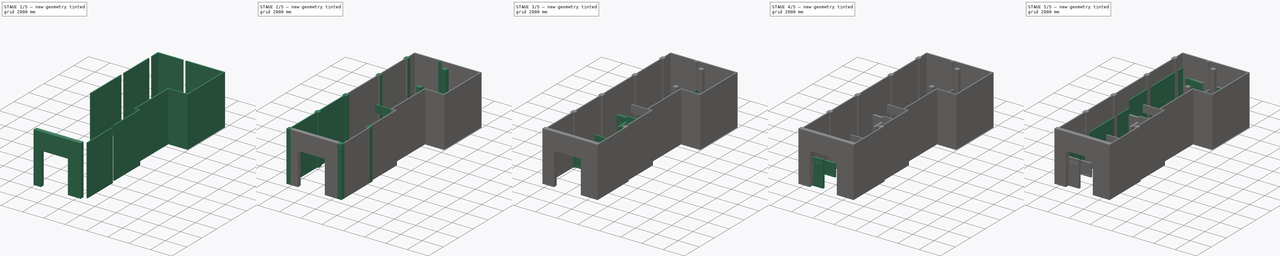
[diagram: build sequence overview — one tinted view per stage of 5, left to right]
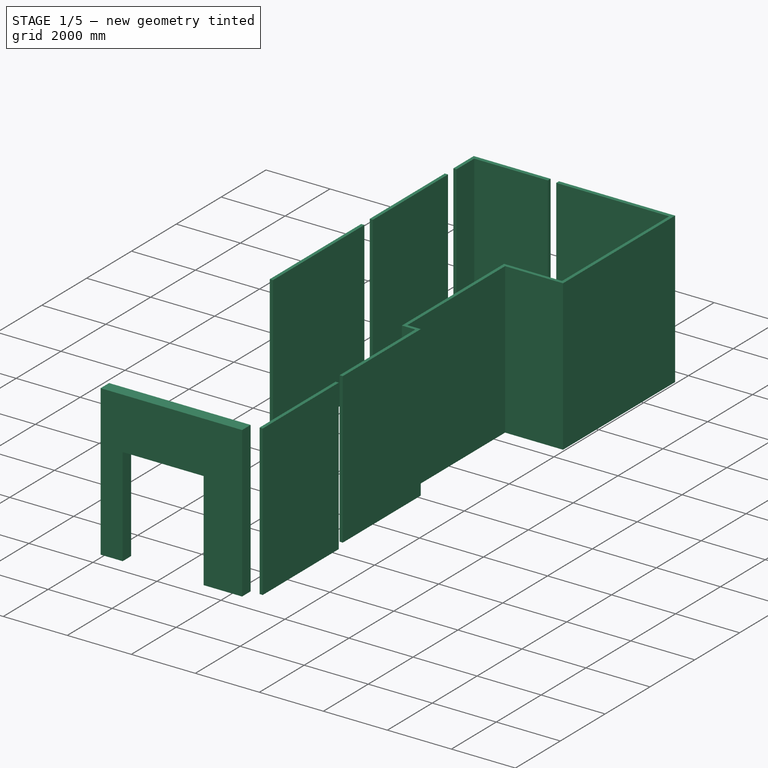
[diagram: stage 1 of 5 — iso view after this stage's code; geometry added in this stage tinted green]
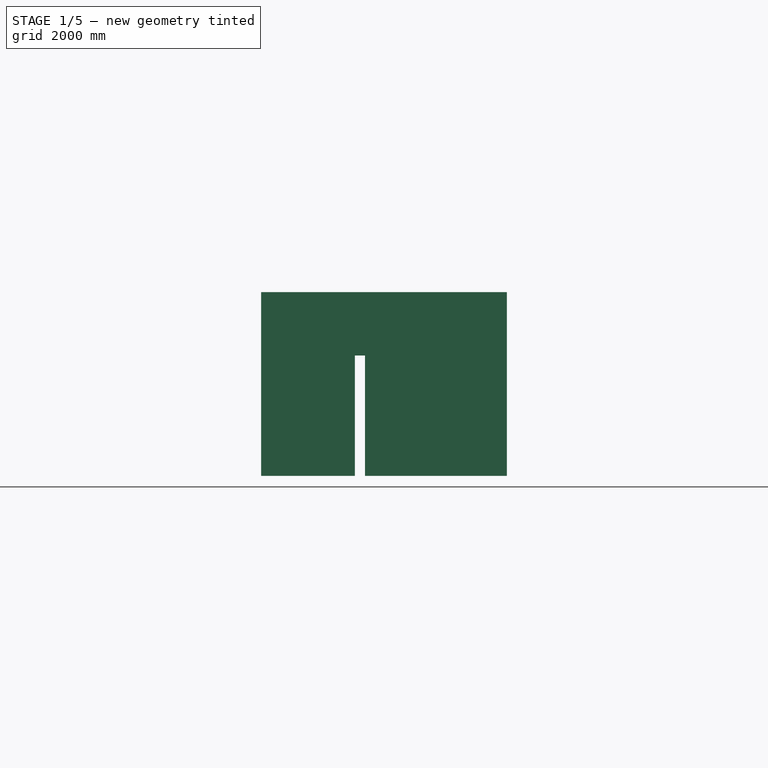
[diagram: stage 1 of 5 — front view after this stage's code; geometry added in this stage tinted green]
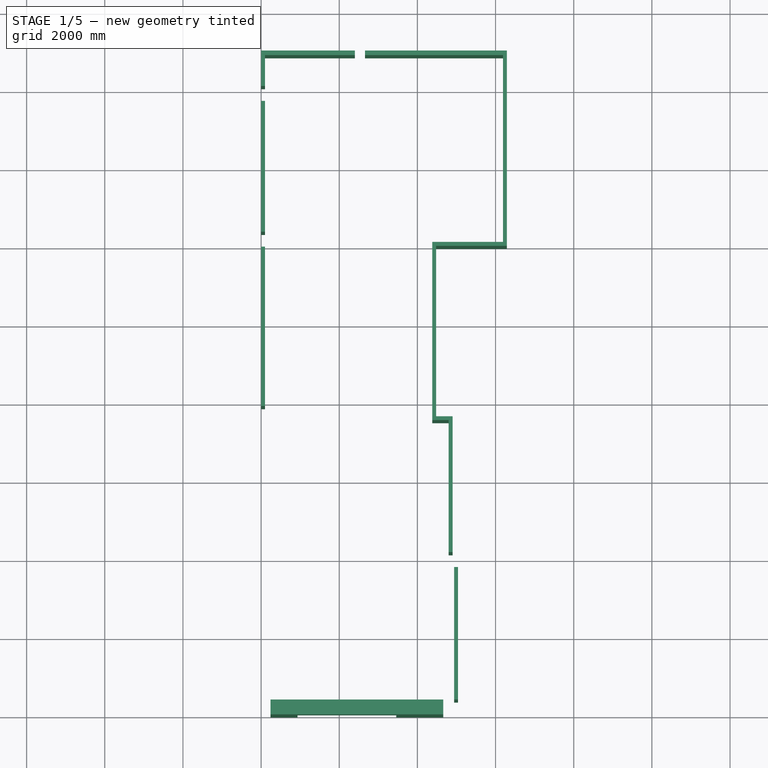
[diagram: stage 1 of 5 — top view after this stage's code; geometry added in this stage tinted green]
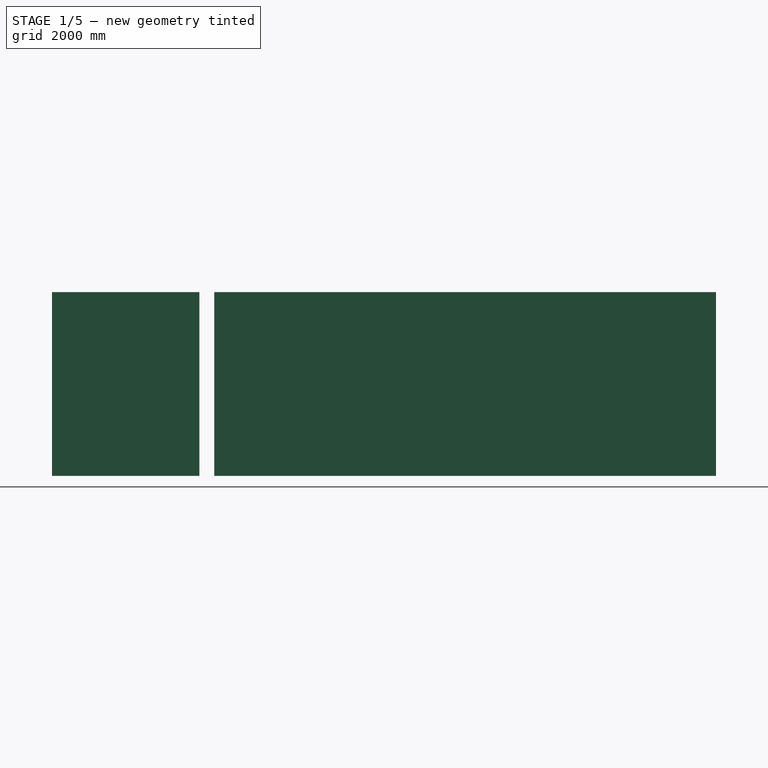
[diagram: stage 1 of 5 — right view after this stage's code; geometry added in this stage tinted green]
FCSTD DOCUMENT  (FreeCAD 0.19R24366 (Git))
Label: SHV-Draft-1
License: All rights reserved
LicenseURL: http://en.wikipedia.org/wiki/All_rights_reserved
objects: Part::FeaturePython×68, Part::Part2DObjectPython×55, App::FeaturePython×39, Sketcher::SketchObject×13, App::DocumentObjectGroup×2, App::GeometryPython×2, TechDraw::DrawSVGTemplate×1, TechDraw::DrawViewArch×1, TechDraw::DrawPage×1
note: 139 computed .brp shape members not serialized (recipe doc carries the construction recipe); baked Part::Feature solids carry a one-line shape summary decoded from their .brp

FEATURE [Part::Part2DObjectPython] Line012  # Draft 2D object (typed FeaturePython)
  Area = 0
  ChamferSize = 0
  Closed = false
  End = (50,11970,0)
  FilletRadius = 0
  Length = 4080
  MakeFace = true
  Points = (2) [(50,7890,0),(50,11970,0)]
  Start = (50,7890,0)
  Subdivisions = 0
FEATURE [Part::FeaturePython] Wall012  label="Wall_3"  # Arch/BIM 166 (typed FeaturePython)
  Align = 2
  Area = 19176000
  Base = -> Line012
  BlockHeight = 0
  BlockLength = 0
  CountBroken = 0
  CountEntire = 0
  Face = 0
  Height = 4700
  HorizontalArea = 408000
  IfcData = attributes={"GlobalId": {"name": "GlobalId", "type": "IfcGloballyUniqueId", "is_enum": false, "enum_values": []}, "Description": {"... (+533 chars omitted),+1 more (map truncated)
  IfcType = 166
  Joint = 0
  Length = 4080
  MakeBlocks = false
  MoveBase = false
  MoveWithHost = false
  Normal = (0,0,0)
  OffsetFirst = 0
  OffsetSecond = 0
  PerimeterLength = 8360
  PredefinedType = 0
  VerticalArea = 39292000
  Width = 100
FEATURE [Part::Part2DObjectPython] Line013  # Draft 2D object (typed FeaturePython)
  Area = 0
  ChamferSize = 0
  Closed = false
  End = (50,15700,0)
  FilletRadius = 0
  Length = 3350
  MakeFace = true
  Points = (2) [(50,12350,0),(50,15700,0)]
  Start = (50,12350,0)
  Subdivisions = 0
FEATURE [Part::FeaturePython] Wall013  label="Wall_4"  # Arch/BIM 166 (typed FeaturePython)
  Align = 2
  Area = 15745000
  Base = -> Line013
  BlockHeight = 0
  BlockLength = 0
  CountBroken = 0
  CountEntire = 0
  Face = 0
  Height = 4700
  HorizontalArea = 335000
  IfcData = attributes={"GlobalId": {"name": "GlobalId", "type": "IfcGloballyUniqueId", "is_enum": false, "enum_values": []}, "Description": {"... (+533 chars omitted),+1 more (map truncated)
  IfcType = 166
  Joint = 0
  Length = 3350
  MakeBlocks = false
  MoveBase = false
  MoveWithHost = false
  Normal = (0,0,0)
  OffsetFirst = 0
  OffsetSecond = 0
  PerimeterLength = 6900
  PredefinedType = 0
  VerticalArea = 32430000
  Width = 100
FEATURE [Part::Part2DObjectPython] Line014  # Draft 2D object (typed FeaturePython)
  Area = 0
  ChamferSize = 0
  Closed = false
  End = (50,16990,0)
  FilletRadius = 0
  Length = 910
  MakeFace = true
  Points = (2) [(50,16080,0),(50,16990,0)]
  Start = (50,16080,0)
  Subdivisions = 0
FEATURE [Part::FeaturePython] Wall014  label="Wall_5"  # Arch/BIM 166 (typed FeaturePython)
  Align = 2
  Area = 4277000
  Base = -> Line014
  BlockHeight = 0
  BlockLength = 0
  CountBroken = 0
  CountEntire = 0
  Face = 0
  Height = 4700
  HorizontalArea = 91000
  IfcData = attributes={"GlobalId": {"name": "GlobalId", "type": "IfcGloballyUniqueId", "is_enum": false, "enum_values": []}, "Description": {"... (+533 chars omitted),+1 more (map truncated)
  IfcType = 166
  Joint = 0
  Length = 910
  MakeBlocks = false
  MoveBase = false
  MoveWithHost = false
  Normal = (0,0,0)
  OffsetFirst = 0
  OffsetSecond = 0
  PerimeterLength = 2020
  PredefinedType = 0
  VerticalArea = 9.494e+06
  Width = 100
FEATURE [Part::Part2DObjectPython] Line015  # Draft 2D object (typed FeaturePython)
  Area = 0
  ChamferSize = 0
  Closed = false
  End = (2400,16930,0)
  FilletRadius = 0
  Length = 2300
  MakeFace = true
  Points = (2) [(100,16930,0),(2400,16930,0)]
  Start = (100,16930,0)
  Subdivisions = 0
FEATURE [Part::FeaturePython] Wall015  label="Wall_6"  # Arch/BIM 166 (typed FeaturePython)
  Align = 2
  Area = 10810000
  Base = -> Line015
  BlockHeight = 0
  BlockLength = 0
  CountBroken = 0
  CountEntire = 0
  Face = 0
  Height = 4700
  HorizontalArea = 276000
  IfcData = attributes={"GlobalId": {"name": "GlobalId", "type": "IfcGloballyUniqueId", "is_enum": false, "enum_values": []}, "Description": {"... (+533 chars omitted),+1 more (map truncated)
  IfcType = 166
  Joint = 0
  Length = 2300
  MakeBlocks = false
  MoveBase = false
  MoveWithHost = false
  Normal = (0,0,0)
  OffsetFirst = 0
  OffsetSecond = 0
  PerimeterLength = 4840
  PredefinedType = 0
  VerticalArea = 22748000
  Width = 120
FEATURE [Part::Part2DObjectPython] Line016  # Draft 2D object (typed FeaturePython)
  Area = 0
  ChamferSize = 0
  Closed = false
  End = (6190,16930,0)
  FilletRadius = 0
  Length = 3530
  MakeFace = true
  Points = (2) [(2660,16930,0),(6190,16930,0)]
  Start = (2660,16930,0)
  Subdivisions = 0
FEATURE [Part::FeaturePython] Wall016  label="Wall_7"  # Arch/BIM 166 (typed FeaturePython)
  Align = 2
  Area = 16591000
  Base = -> Line016
  BlockHeight = 0
  BlockLength = 0
  CountBroken = 0
  CountEntire = 0
  Face = 0
  Height = 4700
  HorizontalArea = 423600
  IfcData = attributes={"GlobalId": {"name": "GlobalId", "type": "IfcGloballyUniqueId", "is_enum": false, "enum_values": []}, "Description": {"... (+533 chars omitted),+1 more (map truncated)
  IfcType = 166
  Joint = 0
  Length = 3530
  MakeBlocks = false
  MoveBase = false
  MoveWithHost = false
  Normal = (0,0,0)
  OffsetFirst = 0
  OffsetSecond = 0
  PerimeterLength = 7300
  PredefinedType = 0
  VerticalArea = 34310000
  Width = 120
FEATURE [Part::Part2DObjectPython] Line017  # Draft 2D object (typed FeaturePython)
  Area = 0
  ChamferSize = 0
  Closed = false
  End = (6240,16990,0)
  FilletRadius = 0
  Length = 5000
  MakeFace = true
  Points = (2) [(6240,11990,0),(6240,16990,0)]
  Start = (6240,11990,0)
  Subdivisions = 0
FEATURE [Part::FeaturePython] Wall017  label="Wall_8"  # Arch/BIM 166 (typed FeaturePython)
  Align = 2
  Area = 23500000
  Base = -> Line017
  BlockHeight = 0
  BlockLength = 0
  CountBroken = 0
  CountEntire = 0
  Face = 0
  Height = 4700
  HorizontalArea = 500000
  IfcData = attributes={"GlobalId": {"name": "GlobalId", "type": "IfcGloballyUniqueId", "is_enum": false, "enum_values": []}, "Description": {"... (+533 chars omitted),+1 more (map truncated)
  IfcType = 166
  Joint = 0
  Length = 5000
  MakeBlocks = false
  MoveBase = false
  MoveWithHost = false
  Normal = (0,0,0)
  OffsetFirst = 0
  OffsetSecond = 0
  PerimeterLength = 10200
  PredefinedType = 0
  VerticalArea = 47940000
  Width = 100
FEATURE [Part::Part2DObjectPython] Line018  # Draft 2D object (typed FeaturePython)
  Area = 0
  ChamferSize = 0
  Closed = false
  End = (6190,12040,0)
  FilletRadius = 0
  Length = 1710
  MakeFace = true
  Points = (2) [(4480,12040,0),(6190,12040,0)]
  Start = (4480,12040,0)
  Subdivisions = 0
FEATURE [Part::FeaturePython] Wall018  label="Wall_9"  # Arch/BIM 166 (typed FeaturePython)
  Align = 2
  Area = 8037000
  Base = -> Line018
  BlockHeight = 0
  BlockLength = 0
  CountBroken = 0
  CountEntire = 0
  Face = 0
  Height = 4700
  HorizontalArea = 171000
  IfcData = attributes={"GlobalId": {"name": "GlobalId", "type": "IfcGloballyUniqueId", "is_enum": false, "enum_values": []}, "Description": {"... (+533 chars omitted),+1 more (map truncated)
  IfcType = 166
  Joint = 0
  Length = 1710
  MakeBlocks = false
  MoveBase = false
  MoveWithHost = false
  Normal = (0,0,0)
  OffsetFirst = 0
  OffsetSecond = 0
  PerimeterLength = 3620
  PredefinedType = 0
  VerticalArea = 17014000
  Width = 100
FEATURE [Part::Part2DObjectPython] Line019  # Draft 2D object (typed FeaturePython)
  Area = 0
  ChamferSize = 0
  Closed = false
  End = (4430,12090,0)
  FilletRadius = 0
  Length = 4560
  MakeFace = true
  Points = (2) [(4430,7530,0),(4430,12090,0)]
  Start = (4430,7530,0)
  Subdivisions = 0
FEATURE [Part::FeaturePython] Wall019  label="Wall_10"  # Arch/BIM 166 (typed FeaturePython)
  Align = 2
  Area = 21432000
  Base = -> Line019
  BlockHeight = 0
  BlockLength = 0
  CountBroken = 0
  CountEntire = 0
  Face = 0
  Height = 4700
  HorizontalArea = 456000
  IfcData = attributes={"GlobalId": {"name": "GlobalId", "type": "IfcGloballyUniqueId", "is_enum": false, "enum_values": []}, "Description": {"... (+533 chars omitted),+1 more (map truncated)
  IfcType = 166
  Joint = 0
  Length = 4560
  MakeBlocks = false
  MoveBase = false
  MoveWithHost = false
  Normal = (0,0,0)
  OffsetFirst = 0
  OffsetSecond = 0
  PerimeterLength = 9320
  PredefinedType = 0
  VerticalArea = 43804000
  Width = 100
FEATURE [Part::Part2DObjectPython] Line020  # Draft 2D object (typed FeaturePython)
  Area = 0
  ChamferSize = 0
  Closed = false
  End = (4800,7580,0)
  FilletRadius = 0
  Length = 320
  MakeFace = true
  Points = (2) [(4480,7580,0),(4800,7580,0)]
  Start = (4480,7580,0)
  Subdivisions = 0
FEATURE [Part::FeaturePython] Wall020  label="Wall_11"  # Arch/BIM 166 (typed FeaturePython)
  Align = 2
  Area = 1504000
  Base = -> Line020
  BlockHeight = 0
  BlockLength = 0
  CountBroken = 0
  CountEntire = 0
  Face = 0
  Height = 4700
  HorizontalArea = 32000
  IfcData = attributes={"GlobalId": {"name": "GlobalId", "type": "IfcGloballyUniqueId", "is_enum": false, "enum_values": []}, "Description": {"... (+533 chars omitted),+1 more (map truncated)
  IfcType = 166
  Joint = 0
  Length = 320
  MakeBlocks = false
  MoveBase = false
  MoveWithHost = false
  Normal = (0,0,0)
  OffsetFirst = 0
  OffsetSecond = 0
  PerimeterLength = 840
  PredefinedType = 0
  VerticalArea = 3.948e+06
  Width = 100
FEATURE [Part::Part2DObjectPython] Line021  # Draft 2D object (typed FeaturePython)
  Area = 0
  ChamferSize = 0
  Closed = false
  End = (4850,7630,0)
  FilletRadius = 0
  Length = 3480
  MakeFace = true
  Points = (2) [(4850,4150,0),(4850,7630,0)]
  Start = (4850,4150,0)
  Subdivisions = 0
FEATURE [Part::FeaturePython] Wall021  label="Wall_12"  # Arch/BIM 166 (typed FeaturePython)
  Align = 2
  Area = 16356000
  Base = -> Line021
  BlockHeight = 0
  BlockLength = 0
  CountBroken = 0
  CountEntire = 0
  Face = 0
  Height = 4700
  HorizontalArea = 348000
  IfcData = attributes={"GlobalId": {"name": "GlobalId", "type": "IfcGloballyUniqueId", "is_enum": false, "enum_values": []}, "Description": {"... (+533 chars omitted),+1 more (map truncated)
  IfcType = 166
  Joint = 0
  Length = 3480
  MakeBlocks = false
  MoveBase = false
  MoveWithHost = false
  Normal = (0,0,0)
  OffsetFirst = 0
  OffsetSecond = 0
  PerimeterLength = 7160
  PredefinedType = 0
  VerticalArea = 33652000
  Width = 100
FEATURE [Part::Part2DObjectPython] Line022  # Draft 2D object (typed FeaturePython)
  Area = 0
  ChamferSize = 0
  Closed = false
  End = (4990,3770,0)
  FilletRadius = 0
  Length = 3390
  MakeFace = true
  Points = (2) [(4990,380,0),(4990,3770,0)]
  Start = (4990,380,0)
  Subdivisions = 0
FEATURE [Part::FeaturePython] Wall022  label="Wall_13"  # Arch/BIM 166 (typed FeaturePython)
  Align = 2
  Area = 15933000
  Base = -> Line022
  BlockHeight = 0
  BlockLength = 0
  CountBroken = 0
  CountEntire = 0
  Face = 0
  Height = 4700
  HorizontalArea = 339000
  IfcData = attributes={"GlobalId": {"name": "GlobalId", "type": "IfcGloballyUniqueId", "is_enum": false, "enum_values": []}, "Description": {"... (+533 chars omitted),+1 more (map truncated)
  IfcType = 166
  Joint = 0
  Length = 3390
  MakeBlocks = false
  MoveBase = false
  MoveWithHost = false
  Normal = (0,0,0)
  OffsetFirst = 0
  OffsetSecond = 0
  PerimeterLength = 6980
  PredefinedType = 0
  VerticalArea = 32806000
  Width = 100
FEATURE [Part::Part2DObjectPython] Line023  # Draft 2D object (typed FeaturePython)
  Area = 0
  ChamferSize = 0
  Closed = false
  End = (4660,190,0)
  FilletRadius = 0
  Length = 4420
  MakeFace = true
  Points = (2) [(240,190,0),(4660,190,0)]
  Start = (240,190,0)
  Subdivisions = 0
FEATURE [Part::Part2DObjectPython] Line024  # Draft 2D object (typed FeaturePython)
  Area = 0
  ChamferSize = 0
  Closed = false
  End = (3460,350,0)
  FilletRadius = 0
  Length = 2531.26
  MakeFace = true
  Points = (2) [(930,270,0),(3460,350,0)]
  Start = (930,270,0)
  Subdivisions = 0
FEATURE [Part::FeaturePython] Wall024  label="Hole_1"  # Arch/BIM 166 (typed FeaturePython)
  Align = 2
  Area = 1.02516e+07
  Base = -> Line024
  BlockHeight = 0
  BlockLength = 0
  CountBroken = 0
  CountEntire = 0
  Face = 0
  Height = 4050
  HorizontalArea = 759379
  IfcData = attributes={"GlobalId": {"name": "GlobalId", "type": "IfcGloballyUniqueId", "is_enum": false, "enum_values": []}, "Description": {"... (+533 chars omitted),+1 more (map truncated)
  IfcType = 166
  Joint = 0
  Length = 2531.26
  MakeBlocks = false
  MoveBase = false
  MoveWithHost = false
  Normal = (0,0,0)
  OffsetFirst = 0
  OffsetSecond = 0
  PerimeterLength = 5662.53
  PredefinedType = 0
  VerticalArea = 2.29332e+07
  Width = 300
FEATURE [Part::Part2DObjectPython] Line025  # Draft 2D object (typed FeaturePython)
  Area = 0
  ChamferSize = 0
  Closed = false
  End = (3460,190,0)
  FilletRadius = 0
  Length = 2530
  MakeFace = true
  Points = (2) [(930,190,0),(3460,190,0)]
  Start = (930,190,0)
  Subdivisions = 0
FEATURE [Part::FeaturePython] Wall025  label="Hole_2"  # Arch/BIM 166 (typed FeaturePython)
  Align = 2
  Area = 7792400
  Base = -> Line025
  BlockHeight = 0
  BlockLength = 0
  CountBroken = 0
  CountEntire = 0
  Face = 0
  Height = 3080
  HorizontalArea = 961400
  IfcData = attributes={"GlobalId": {"name": "GlobalId", "type": "IfcGloballyUniqueId", "is_enum": false, "enum_values": []}, "Description": {"... (+533 chars omitted),+1 more (map truncated)
  IfcType = 166
  Joint = 0
  Length = 2530
  MakeBlocks = false
  MoveBase = false
  MoveWithHost = false
  Normal = (0,0,0)
  OffsetFirst = 0
  OffsetSecond = 0
  PerimeterLength = 5820
  PredefinedType = 0
  VerticalArea = 1.79256e+07
  Width = 380
FEATURE [Part::FeaturePython] Wall023  label="Wall_14"  # Arch/BIM 166 (typed FeaturePython)
  Align = 2
  Area = 20774000
  Base = -> Line023
  BlockHeight = 0
  BlockLength = 0
  CountBroken = 0
  CountEntire = 0
  Face = 0
  Height = 4700
  HorizontalArea = 1679600
  IfcData = attributes={"GlobalId": {"name": "GlobalId", "type": "IfcGloballyUniqueId", "is_enum": false, "enum_values": []}, "Description": {"... (+533 chars omitted),+1 more (map truncated)
  IfcType = 166
  Joint = 0
  Length = 4420
  MakeBlocks = false
  MoveBase = false
  MoveWithHost = false
  Normal = (0,0,0)
  OffsetFirst = 0
  OffsetSecond = 0
  PerimeterLength = 9600
  PredefinedType = 0
  Subtractions = -> [Wall024,Wall025]
  VerticalArea = 3.23055e+07
  Width = 380
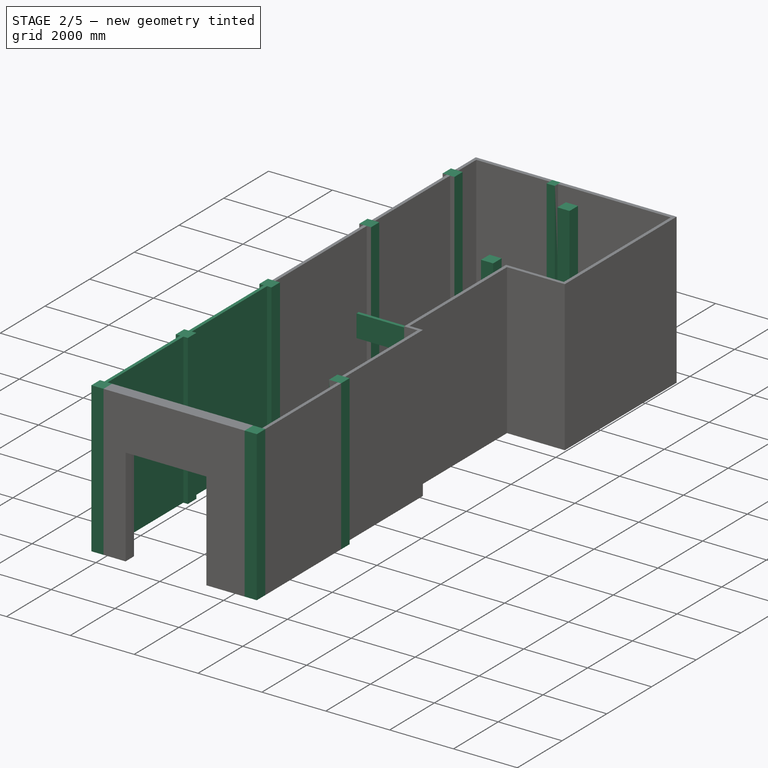
[diagram: stage 2 of 5 — iso view after this stage's code; geometry added in this stage tinted green]
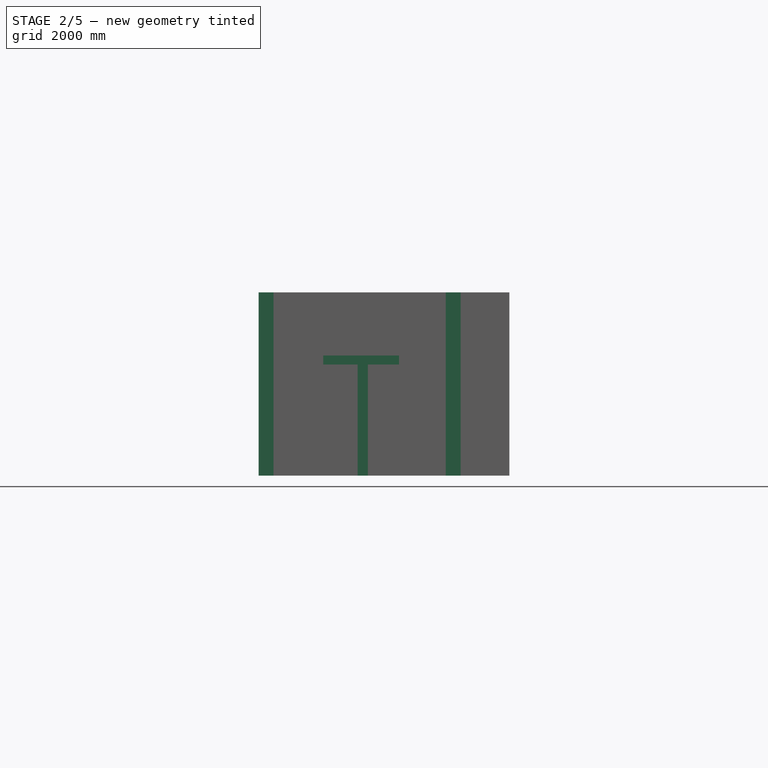
[diagram: stage 2 of 5 — front view after this stage's code; geometry added in this stage tinted green]
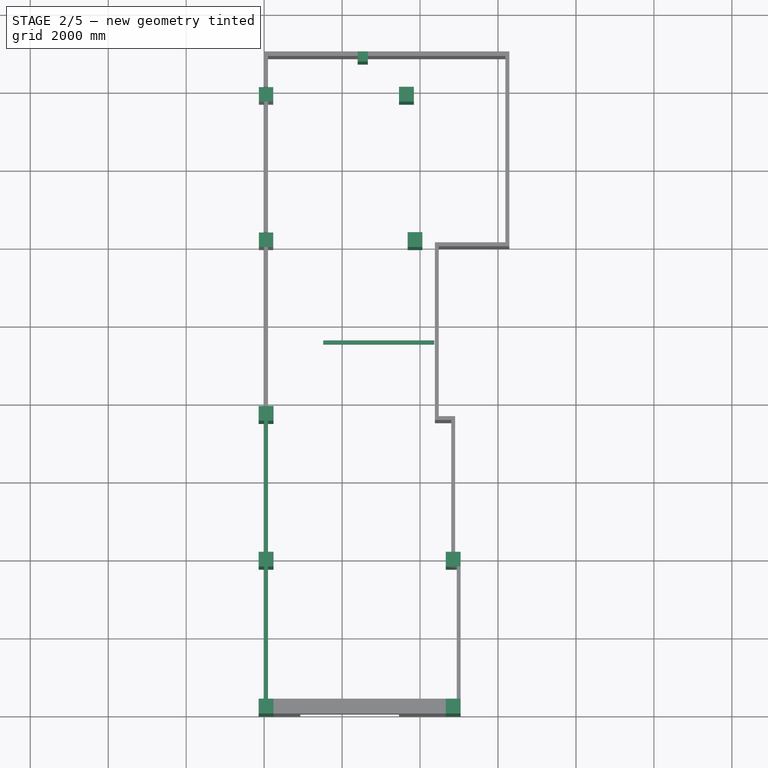
[diagram: stage 2 of 5 — top view after this stage's code; geometry added in this stage tinted green]
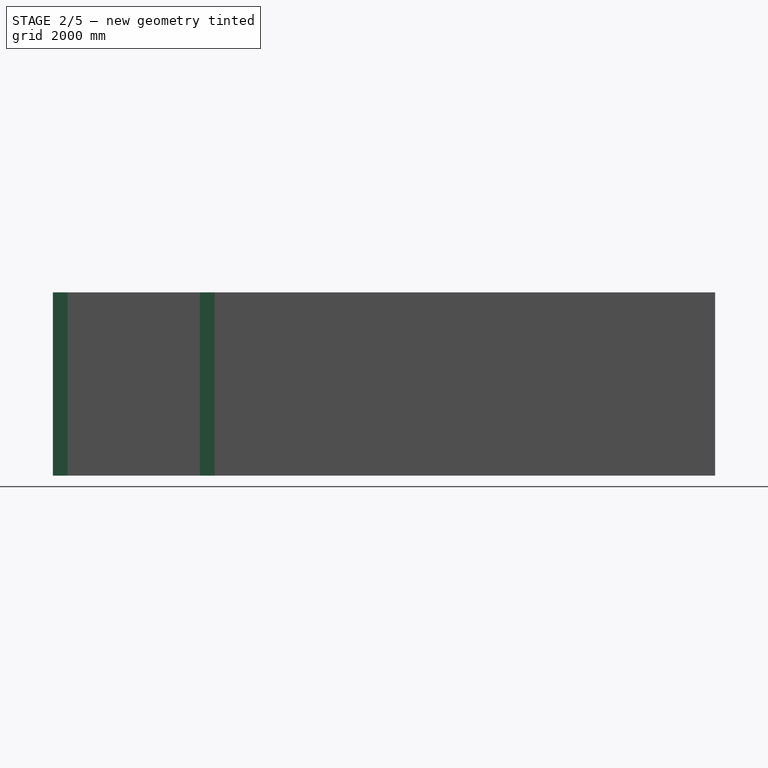
[diagram: stage 2 of 5 — right view after this stage's code; geometry added in this stage tinted green]
FEATURE [App::DocumentObjectGroup] Dimensions001  label="New Dimensions"
FEATURE [Part::Part2DObjectPython] Line  # Draft 2D object (typed FeaturePython)
  Area = 0
  ChamferSize = 0
  Closed = false
  End = (240,190,0)
  FilletRadius = 0
  Length = 380
  MakeFace = true
  Points = (2) [(-140,190,0),(240,190,0)]
  Start = (-140,190,0)
  Subdivisions = 0
FEATURE [Part::FeaturePython] Wall  label="Pillar_1"  # Arch/BIM 166 (typed FeaturePython)
  Align = 2
  Area = 1786000
  Base = -> Line
  BlockHeight = 0
  BlockLength = 0
  CountBroken = 0
  CountEntire = 0
  Face = 0
  Height = 4700
  HorizontalArea = 144400
  IfcData = attributes={"GlobalId": {"name": "GlobalId", "type": "IfcGloballyUniqueId", "is_enum": false, "enum_values": []}, "Description": {"... (+533 chars omitted),+1 more (map truncated)
  IfcType = 166
  Joint = 0
  Length = 380
  MakeBlocks = false
  MoveBase = false
  MoveWithHost = false
  Normal = (0,0,0)
  OffsetFirst = 0
  OffsetSecond = 0
  PerimeterLength = 1520
  PredefinedType = 0
  VerticalArea = 7144000
  Width = 380
FEATURE [Part::Part2DObjectPython] Line001  # Draft 2D object (typed FeaturePython)
  Area = 0
  ChamferSize = 0
  Closed = false
  End = (240,3960,0)
  FilletRadius = 0
  Length = 380
  MakeFace = true
  Points = (2) [(-140,3960,0),(240,3960,0)]
  Start = (-140,3960,0)
  Subdivisions = 0
FEATURE [Part::FeaturePython] Wall001  label="Pillar_2"  # Arch/BIM 166 (typed FeaturePython)
  Align = 2
  Area = 1786000
  Base = -> Line001
  BlockHeight = 0
  BlockLength = 0
  CountBroken = 0
  CountEntire = 0
  Face = 0
  Height = 4700
  HorizontalArea = 144400
  IfcData = attributes={"GlobalId": {"name": "GlobalId", "type": "IfcGloballyUniqueId", "is_enum": false, "enum_values": []}, "Description": {"... (+533 chars omitted),+1 more (map truncated)
  IfcType = 166
  Joint = 0
  Length = 380
  MakeBlocks = false
  MoveBase = false
  MoveWithHost = false
  Normal = (0,0,0)
  OffsetFirst = 0
  OffsetSecond = 0
  PerimeterLength = 1520
  PredefinedType = 0
  VerticalArea = 7144000
  Width = 380
FEATURE [Part::Part2DObjectPython] Line002  # Draft 2D object (typed FeaturePython)
  Area = 0
  ChamferSize = 0
  Closed = false
  End = (240,7700,0)
  FilletRadius = 0
  Length = 380
  MakeFace = true
  Points = (2) [(-140,7700,0),(240,7700,0)]
  Start = (-140,7700,0)
  Subdivisions = 0
FEATURE [Part::FeaturePython] Wall002  label="Pillar_3"  # Arch/BIM 166 (typed FeaturePython)
  Align = 2
  Area = 1786000
  Base = -> Line002
  BlockHeight = 0
  BlockLength = 0
  CountBroken = 0
  CountEntire = 0
  Face = 0
  Height = 4700
  HorizontalArea = 144400
  IfcData = attributes={"GlobalId": {"name": "GlobalId", "type": "IfcGloballyUniqueId", "is_enum": false, "enum_values": []}, "Description": {"... (+533 chars omitted),+1 more (map truncated)
  IfcType = 166
  Joint = 0
  Length = 380
  MakeBlocks = false
  MoveBase = false
  MoveWithHost = false
  Normal = (0,0,0)
  OffsetFirst = 0
  OffsetSecond = 0
  PerimeterLength = 1520
  PredefinedType = 0
  VerticalArea = 7144000
  Width = 380
FEATURE [Part::Part2DObjectPython] Line003  # Draft 2D object (typed FeaturePython)
  Area = 0
  ChamferSize = 0
  Closed = false
  End = (235,12155,0)
  FilletRadius = 0
  Length = 370
  MakeFace = true
  Points = (2) [(-135,12155,0),(235,12155,0)]
  Start = (-135,12155,0)
  Subdivisions = 0
FEATURE [Part::FeaturePython] Wall003  label="Pillar_4"  # Arch/BIM 166 (typed FeaturePython)
  Align = 2
  Area = 1739000
  Base = -> Line003
  BlockHeight = 0
  BlockLength = 0
  CountBroken = 0
  CountEntire = 0
  Face = 0
  Height = 4700
  HorizontalArea = 136900
  IfcData = attributes={"GlobalId": {"name": "GlobalId", "type": "IfcGloballyUniqueId", "is_enum": false, "enum_values": []}, "Description": {"... (+533 chars omitted),+1 more (map truncated)
  IfcType = 166
  Joint = 0
  Length = 370
  MakeBlocks = false
  MoveBase = false
  MoveWithHost = false
  Normal = (0,0,0)
  OffsetFirst = 0
  OffsetSecond = 0
  PerimeterLength = 1480
  PredefinedType = 0
  VerticalArea = 6956000
  Width = 370
FEATURE [Part::Part2DObjectPython] Line004  # Draft 2D object (typed FeaturePython)
  Area = 0
  ChamferSize = 0
  Closed = false
  End = (235,15885,0)
  FilletRadius = 0
  Length = 370
  MakeFace = true
  Points = (2) [(-135,15885,0),(235,15885,0)]
  Start = (-135,15885,0)
  Subdivisions = 0
FEATURE [Part::FeaturePython] Wall004  label="Pillar_5"  # Arch/BIM 166 (typed FeaturePython)
  Align = 2
  Area = 1739000
  Base = -> Line004
  BlockHeight = 0
  BlockLength = 0
  CountBroken = 0
  CountEntire = 0
  Face = 0
  Height = 4700
  HorizontalArea = 136900
  IfcData = attributes={"GlobalId": {"name": "GlobalId", "type": "IfcGloballyUniqueId", "is_enum": false, "enum_values": []}, "Description": {"... (+533 chars omitted),+1 more (map truncated)
  IfcType = 166
  Joint = 0
  Length = 370
  MakeBlocks = false
  MoveBase = false
  MoveWithHost = false
  Normal = (0,0,0)
  OffsetFirst = 0
  OffsetSecond = 0
  PerimeterLength = 1480
  PredefinedType = 0
  VerticalArea = 6956000
  Width = 370
FEATURE [Part::Part2DObjectPython] Line005  # Draft 2D object (typed FeaturePython)
  Area = 0
  ChamferSize = 0
  Closed = false
  End = (2660,16860,0)
  FilletRadius = 0
  Length = 260
  MakeFace = true
  Points = (2) [(2400,16860,0),(2660,16860,0)]
  Start = (2400,16860,0)
  Subdivisions = 0
FEATURE [Part::FeaturePython] Wall005  label="Pillar_6"  # Arch/BIM 166 (typed FeaturePython)
  Align = 2
  Area = 1222000
  Base = -> Line005
  BlockHeight = 0
  BlockLength = 0
  CountBroken = 0
  CountEntire = 0
  Face = 0
  Height = 4700
  HorizontalArea = 67600
  IfcData = attributes={"GlobalId": {"name": "GlobalId", "type": "IfcGloballyUniqueId", "is_enum": false, "enum_values": []}, "Description": {"... (+533 chars omitted),+1 more (map truncated)
  IfcType = 166
  Joint = 0
  Length = 260
  MakeBlocks = false
  MoveBase = false
  MoveWithHost = false
  Normal = (0,0,0)
  OffsetFirst = 0
  OffsetSecond = 0
  PerimeterLength = 1040
  PredefinedType = 0
  VerticalArea = 4.888e+06
  Width = 260
FEATURE [Part::Part2DObjectPython] Line006  # Draft 2D object (typed FeaturePython)
  Area = 0
  ChamferSize = 0
  Closed = false
  End = (3840,15890,0)
  FilletRadius = 0
  Length = 380
  MakeFace = true
  Points = (2) [(3460,15890,0),(3840,15890,0)]
  Start = (3460,15890,0)
  Subdivisions = 0
FEATURE [Part::FeaturePython] Wall006  label="Pillar_7"  # Arch/BIM 166 (typed FeaturePython)
  Align = 2
  Area = 1786000
  Base = -> Line006
  BlockHeight = 0
  BlockLength = 0
  CountBroken = 0
  CountEntire = 0
  Face = 0
  Height = 4700
  HorizontalArea = 144400
  IfcData = attributes={"GlobalId": {"name": "GlobalId", "type": "IfcGloballyUniqueId", "is_enum": false, "enum_values": []}, "Description": {"... (+533 chars omitted),+1 more (map truncated)
  IfcType = 166
  Joint = 0
  Length = 380
  MakeBlocks = false
  MoveBase = false
  MoveWithHost = false
  Normal = (0,0,0)
  OffsetFirst = 0
  OffsetSecond = 0
  PerimeterLength = 1520
  PredefinedType = 0
  VerticalArea = 7144000
  Width = 380
FEATURE [Part::Part2DObjectPython] Line007  # Draft 2D object (typed FeaturePython)
  Area = 0
  ChamferSize = 0
  Closed = false
  End = (4060,12160,0)
  FilletRadius = 0
  Length = 380
  MakeFace = true
  Points = (2) [(3680,12160,0),(4060,12160,0)]
  Start = (3680,12160,0)
  Subdivisions = 0
FEATURE [Part::FeaturePython] Wall007  label="Pillar_8"  # Arch/BIM 166 (typed FeaturePython)
  Align = 2
  Area = 1786000
  Base = -> Line007
  BlockHeight = 0
  BlockLength = 0
  CountBroken = 0
  CountEntire = 0
  Face = 0
  Height = 4700
  HorizontalArea = 144400
  IfcData = attributes={"GlobalId": {"name": "GlobalId", "type": "IfcGloballyUniqueId", "is_enum": false, "enum_values": []}, "Description": {"... (+533 chars omitted),+1 more (map truncated)
  IfcType = 166
  Joint = 0
  Length = 380
  MakeBlocks = false
  MoveBase = false
  MoveWithHost = false
  Normal = (0,0,0)
  OffsetFirst = 0
  OffsetSecond = 0
  PerimeterLength = 1520
  PredefinedType = 0
  VerticalArea = 7144000
  Width = 380
FEATURE [Part::Part2DObjectPython] Line008  # Draft 2D object (typed FeaturePython)
  Area = 0
  ChamferSize = 0
  Closed = false
  End = (5040,3960,0)
  FilletRadius = 0
  Length = 380
  MakeFace = true
  Points = (2) [(4660,3960,0),(5040,3960,0)]
  Start = (4660,3960,0)
  Subdivisions = 0
FEATURE [Part::FeaturePython] Wall008  label="Pillar_9"  # Arch/BIM 166 (typed FeaturePython)
  Align = 2
  Area = 1786000
  Base = -> Line008
  BlockHeight = 0
  BlockLength = 0
  CountBroken = 0
  CountEntire = 0
  Face = 0
  Height = 4700
  HorizontalArea = 144400
  IfcData = attributes={"GlobalId": {"name": "GlobalId", "type": "IfcGloballyUniqueId", "is_enum": false, "enum_values": []}, "Description": {"... (+533 chars omitted),+1 more (map truncated)
  IfcType = 166
  Joint = 0
  Length = 380
  MakeBlocks = false
  MoveBase = false
  MoveWithHost = false
  Normal = (0,0,0)
  OffsetFirst = 0
  OffsetSecond = 0
  PerimeterLength = 1520
  PredefinedType = 0
  VerticalArea = 7144000
  Width = 380
FEATURE [Part::Part2DObjectPython] Line009  # Draft 2D object (typed FeaturePython)
  Area = 0
  ChamferSize = 0
  Closed = false
  End = (5040,190,0)
  FilletRadius = 0
  Length = 380
  MakeFace = true
  Points = (2) [(4660,190,0),(5040,190,0)]
  Start = (4660,190,0)
  Subdivisions = 0
FEATURE [Part::FeaturePython] Wall009  label="Pillar_10"  # Arch/BIM 166 (typed FeaturePython)
  Align = 2
  Area = 1786000
  Base = -> Line009
  BlockHeight = 0
  BlockLength = 0
  CountBroken = 0
  CountEntire = 0
  Face = 0
  Height = 4700
  HorizontalArea = 144400
  IfcData = attributes={"GlobalId": {"name": "GlobalId", "type": "IfcGloballyUniqueId", "is_enum": false, "enum_values": []}, "Description": {"... (+533 chars omitted),+1 more (map truncated)
  IfcType = 166
  Joint = 0
  Length = 380
  MakeBlocks = false
  MoveBase = false
  MoveWithHost = false
  Normal = (0,0,0)
  OffsetFirst = 0
  OffsetSecond = 0
  PerimeterLength = 1520
  PredefinedType = 0
  VerticalArea = 7144000
  Width = 380
FEATURE [Part::Part2DObjectPython] Line010  # Draft 2D object (typed FeaturePython)
  Area = 0
  ChamferSize = 0
  Closed = false
  End = (50,3770,0)
  FilletRadius = 0
  Length = 3390
  MakeFace = true
  Points = (2) [(50,380,0),(50,3770,0)]
  Start = (50,380,0)
  Subdivisions = 0
FEATURE [Part::FeaturePython] Wall010  label="Wall_1"  # Arch/BIM 166 (typed FeaturePython)
  Align = 2
  Area = 15933000
  Base = -> Line010
  BlockHeight = 0
  BlockLength = 0
  CountBroken = 0
  CountEntire = 0
  Face = 0
  Height = 4700
  HorizontalArea = 339000
  IfcData = attributes={"GlobalId": {"name": "GlobalId", "type": "IfcGloballyUniqueId", "is_enum": false, "enum_values": []}, "Description": {"... (+533 chars omitted),+1 more (map truncated)
  IfcType = 166
  Joint = 0
  Length = 3390
  MakeBlocks = false
  MoveBase = false
  MoveWithHost = false
  Normal = (0,0,0)
  OffsetFirst = 0
  OffsetSecond = 0
  PerimeterLength = 6980
  PredefinedType = 0
  VerticalArea = 32806000
  Width = 100
FEATURE [Part::Part2DObjectPython] Line011  # Draft 2D object (typed FeaturePython)
  Area = 0
  ChamferSize = 0
  Closed = false
  End = (50,7510,0)
  FilletRadius = 0
  Length = 3360
  MakeFace = true
  Points = (2) [(50,4150,0),(50,7510,0)]
  Start = (50,4150,0)
  Subdivisions = 0
FEATURE [Part::FeaturePython] Wall011  label="Wall_2"  # Arch/BIM 166 (typed FeaturePython)
  Align = 2
  Area = 15792000
  Base = -> Line011
  BlockHeight = 0
  BlockLength = 0
  CountBroken = 0
  CountEntire = 0
  Face = 0
  Height = 4700
  HorizontalArea = 336000
  IfcData = attributes={"GlobalId": {"name": "GlobalId", "type": "IfcGloballyUniqueId", "is_enum": false, "enum_values": []}, "Description": {"... (+533 chars omitted),+1 more (map truncated)
  IfcType = 166
  Joint = 0
  Length = 3360
  MakeBlocks = false
  MoveBase = false
  MoveWithHost = false
  Normal = (0,0,0)
  OffsetFirst = 0
  OffsetSecond = 0
  PerimeterLength = 6920
  PredefinedType = 0
  VerticalArea = 32524000
  Width = 100
FEATURE [Part::Part2DObjectPython] Line054  # Draft 2D object (typed FeaturePython)
  Area = 0
  ChamferSize = 0
  Closed = false
  End = (4365,9545,2850)
  FilletRadius = 0
  Length = 2850
  MakeFace = true
  Points = (2) [(1515,9545,2850),(4365,9545,2850)]
  Start = (1515,9545,2850)
  Subdivisions = 0
FEATURE [Part::FeaturePython] Wall054  label="Steel_Wall_Kitchen"  # Arch/BIM 166 (typed FeaturePython)
  Align = 2
  Area = 1995000
  Base = -> Line054
  BlockHeight = 0
  BlockLength = 0
  CountBroken = 0
  CountEntire = 0
  Face = 0
  Height = 700
  HorizontalArea = 285000
  IfcData = attributes={"GlobalId": {"name": "GlobalId", "type": "IfcGloballyUniqueId", "is_enum": false, "enum_values": []}, "Description": {"... (+533 chars omitted),+1 more (map truncated)
  IfcType = 166
  Joint = 0
  Length = 2850
  MakeBlocks = false
  MoveBase = false
  MoveWithHost = false
  Normal = (0,0,0)
  OffsetFirst = 0
  OffsetSecond = 0
  PerimeterLength = 5900
  PredefinedType = 0
  VerticalArea = 4130000
  Width = 100
FEATURE [App::GeometryPython] BuildingPart001  label="New Structure"  # Arch/BIM 10 (typed FeaturePython)
  Area = 189653900
  BuildingType = 0
  CompositionType = 0
  ElevationOfRefHeight = 0
  ElevationOfTerrain = 0
  Group = -> [Wall026,Wall027,Wall028,Wall029,Wall030,Wall031,Wall032,Wall033,Wall034,Wall035,Wall036,Wall037,Wall038,Wall039,Wall040,Wall041,Wall042,Wall043,Wall044,Wall045,Wall046,Wall047,Wall048,Wall049,Wall050,Wall051,Wall052,Wall053,Wall054]
  Height = 0
  HeightPropagate = true
  IfcData = attributes={"GlobalId": {"name": "GlobalId", "type": "IfcGloballyUniqueId", "is_enum": false, "enum_values": []}, "Description": {"... (+1010 chars omitted),+1 more (map truncated)
  IfcType = 10
  LevelOffset = 0
  LongName = Building
FEATURE [App::FeaturePython] Dimension  label="Dim_South_Pillar_1"  # Draft dimension (typed FeaturePython)
  Diameter = false
  Dimline = (50,-300,0)
  Direction = (0,0,0)
  Distance = 380
  End = (240,0,0)
  Normal = (0,0,1)
  Start = (-140,0,0)
FEATURE [App::FeaturePython] Dimension001  label="Dim_West_Pillar_1"  # Draft dimension (typed FeaturePython)
  Diameter = false
  Dimline = (-440,190,0)
  Direction = (0,0,0)
  Distance = 380
  End = (-140,380,0)
  Normal = (0,0,1)
  Start = (-140,0,0)
FEATURE [App::FeaturePython] Dimension002  label="Dim_West_Pillar_2"  # Draft dimension (typed FeaturePython)
  Diameter = false
  Dimline = (-440,3960,0)
  Direction = (0,0,0)
  Distance = 380
  End = (-140,4150,0)
  Normal = (0,0,1)
  Start = (-140,3770,0)
FEATURE [App::FeaturePython] Dimension003  label="Dim_West_Pillar_3"  # Draft dimension (typed FeaturePython)
  Diameter = false
  Dimline = (-440,7700,0)
  Direction = (0,0,0)
  Distance = 380
  End = (-140,7890,0)
  Normal = (0,0,1)
  Start = (-140,7510,0)
FEATURE [App::FeaturePython] Dimension004  label="Dim_West_Pillar_4"  # Draft dimension (typed FeaturePython)
  Diameter = false
  Dimline = (-435,12155,0)
  Direction = (0,0,0)
  Distance = 370
  End = (-135,12340,0)
  Normal = (0,0,1)
  Start = (-135,11970,0)
FEATURE [App::FeaturePython] Dimension005  label="Dim_West_Pillar_5"  # Draft dimension (typed FeaturePython)
  Diameter = false
  Dimline = (-435,15885,0)
  Direction = (0,0,0)
  Distance = 370
  End = (-135,16070,0)
  Normal = (0,0,1)
  Start = (-135,15700,0)
FEATURE [App::FeaturePython] Dimension006  label="Dim_West_Wall_1"  # Draft dimension (typed FeaturePython)
  Diameter = false
  Dimline = (-300,2075,0)
  Direction = (0,0,0)
  Distance = 3390
  End = (9.95e-14,3770,0)
  Normal = (0,0,1)
  Start = (9.95e-14,380,0)
FEATURE [App::FeaturePython] Dimension007  label="Dim_West_Wall_2"  # Draft dimension (typed FeaturePython)
  Diameter = false
  Dimline = (-300,5830,0)
  Direction = (0,0,0)
  Distance = 3360
  End = (9.95e-14,7510,0)
  Normal = (0,0,1)
  Start = (9.95e-14,4150,0)
FEATURE [App::FeaturePython] Dimension008  label="Dim_West_Wall_3"  # Draft dimension (typed FeaturePython)
  Diameter = false
  Dimline = (-300,9930,0)
  Direction = (0,0,0)
  Distance = 4080
  End = (9.95e-14,11970,0)
  Normal = (0,0,1)
  Start = (9.95e-14,7890,0)
FEATURE [App::FeaturePython] Dimension009  label="Dim_West_Wall_4"  # Draft dimension (typed FeaturePython)
  Diameter = false
  Dimline = (-300,14025,0)
  Direction = (0,0,0)
  Distance = 3350
  End = (9.95e-14,15700,0)
  Normal = (0,0,1)
  Start = (9.95e-14,12350,0)
FEATURE [App::FeaturePython] Dimension010  label="Dim_North-South_Pillar_5_End_Wall_6_Start"  # Draft dimension (typed FeaturePython)
  Diameter = false
  Dimline = (-250,16470,0)
  Direction = (0,0,0)
  Distance = 800
  End = (50,16870,0)
  Normal = (0,0,1)
  Start = (50,16070,0)
FEATURE [App::FeaturePython] Dimension011  label="Dim_North_Pillar_6"  # Draft dimension (typed FeaturePython)
  Diameter = false
  Dimline = (2530,17290,0)
  Direction = (0,0,0)
  Distance = 260
  End = (2660,16990,0)
  Normal = (0,0,1)
  Start = (2400,16990,0)
FEATURE [App::FeaturePython] Dimension012  label="Dim_North_Wall_6"  # Draft dimension (typed FeaturePython)
  Diameter = false
  Dimline = (1250,17290,0)
  Direction = (0,0,0)
  Distance = 2300
  End = (2400,16990,0)
  Normal = (0,0,1)
  Start = (100,16990,0)
FEATURE [App::FeaturePython] Dimension013  label="Dim_North_Wall_7"  # Draft dimension (typed FeaturePython)
  Diameter = false
  Dimline = (4425,17290,0)
  Direction = (0,0,0)
  Distance = 3530
  End = (6190,16990,0)
  Normal = (0,0,1)
  Start = (2660,16990,0)
FEATURE [App::FeaturePython] Dimension014  label="Dim_North_Pillar_7"  # Draft dimension (typed FeaturePython)
  Diameter = false
  Dimline = (3650,16380,0)
  Direction = (0,0,0)
  Distance = 380
  End = (3840,16080,0)
  Normal = (0,0,1)
  Start = (3460,16080,0)
FEATURE [App::FeaturePython] Dimension015  label="Dim_West_Pillar_7"  # Draft dimension (typed FeaturePython)
  Diameter = false
  Dimline = (3160,15890,0)
  Direction = (0,0,0)
  Distance = 380
  End = (3460,16080,0)
  Normal = (0,0,1)
  Start = (3460,15700,0)
FEATURE [App::FeaturePython] Dimension016  label="Dim_North_Pillar_8"  # Draft dimension (typed FeaturePython)
  Diameter = false
  Dimline = (3870,12650,0)
  Direction = (0,0,0)
  Distance = 380
  End = (4060,12350,0)
  Normal = (0,0,1)
  Start = (3680,12350,0)
FEATURE [App::FeaturePython] Dimension017  label="Dim_West_Pillar_8"  # Draft dimension (typed FeaturePython)
  Diameter = false
  Dimline = (3380,12160,0)
  Direction = (0,0,0)
  Distance = 380
  End = (3680,12350,0)
  Normal = (0,0,1)
  Start = (3680,11970,0)
FEATURE [App::FeaturePython] Dimension018  label="Dim_East_Pillar_9"  # Draft dimension (typed FeaturePython)
  Diameter = false
  Dimline = (5340,3960,0)
  Direction = (0,0,0)
  Distance = 380
  End = (5040,4150,0)
  Normal = (0,0,1)
  Start = (5040,3770,0)
FEATURE [App::FeaturePython] Dimension019  label="Dim_East_Pillar_10"  # Draft dimension (typed FeaturePython)
  Diameter = false
  Dimline = (5340,190,0)
  Direction = (0,0,0)
  Distance = 380
  End = (5040,380,0)
  Normal = (0,0,1)
  Start = (5040,0,0)
FEATURE [App::FeaturePython] Dimension020  label="Dim_South_Pillar_10"  # Draft dimension (typed FeaturePython)
  Diameter = false
  Dimline = (4850,-300,0)
  Direction = (0,0,0)
  Distance = 380
  End = (5040,0,0)
  Normal = (0,0,1)
  Start = (4660,0,0)
FEATURE [App::FeaturePython] Dimension021  label="Dim_North-South_Wall_7_Start_Wall_9_End"  # Draft dimension (typed FeaturePython)
  Diameter = false
  Dimline = (6625,14480,0)
  Direction = (0,0,0)
  Distance = 4780
  End = (4425,12090,0)
  Normal = (0,0,1)
  Start = (4425,16870,0)
FEATURE [App::FeaturePython] Dimension022  label="Dim_East-West_Wall_10_Start_Wall_9_End"  # Draft dimension (typed FeaturePython)
  Diameter = false
  Dimline = (5285,12310,0)
  Direction = (0,0,0)
  Distance = 1810
  End = (6190,9810,0)
  Normal = (0,0,1)
  Start = (4380,9810,0)
FEATURE [App::FeaturePython] Dimension023  label="Dim_East_Wall_10"  # Draft dimension (typed FeaturePython)
  Diameter = false
  Dimline = (4780,9810,0)
  Direction = (0,0,0)
  Distance = 4560
  End = (4480,12090,0)
  Normal = (0,0,1)
  Start = (4480,7530,0)
FEATURE [App::FeaturePython] Dimension024  label="Dim_East_Wall_13"  # Draft dimension (typed FeaturePython)
  Diameter = false
  Dimline = (5340,2075,0)
  Direction = (0,0,0)
  Distance = 3390
  End = (5040,3770,0)
  Normal = (0,0,1)
  Start = (5040,380,0)
FEATURE [App::FeaturePython] Dimension025  label="Dim_East-West_Wall_10_Start_Wall_12_Start"  # Draft dimension (typed FeaturePython)
  Diameter = false
  Dimline = (4590,7310,0)
  Direction = (0,0,0)
  Distance = 420
  End = (4800,9810,0)
  Normal = (0,0,1)
  Start = (4380,9810,0)
FEATURE [App::FeaturePython] Dimension026  label="Dim_North-South_Wall_11_Start_Pillar_9_End"  # Draft dimension (typed FeaturePython)
  Diameter = false
  Dimline = (5140,5840,0)
  Direction = (0,0,0)
  Distance = 3380
  End = (4640,4150,0)
  Normal = (0,0,1)
  Start = (4640,7530,0)
FEATURE [App::FeaturePython] Dimension027  label="Dim_East-West_Wall_1_End_Wall_13_Start"  # Draft dimension (typed FeaturePython)
  Diameter = false
  Dimline = (2520,2075,0)
  Direction = (0,0,0)
  Distance = 4840
  End = (4940,2075,0)
  Normal = (0,0,1)
  Start = (100,2075,0)
FEATURE [App::FeaturePython] Dimension028  label="Dim_East-West_Wall_2_End_Wall_12_Start"  # Draft dimension (typed FeaturePython)
  Diameter = false
  Dimline = (2450,5830,0)
  Direction = (0,0,0)
  Distance = 4700
  End = (4800,5830,0)
  Normal = (0,0,1)
  Start = (100,5830,0)
FEATURE [App::FeaturePython] Dimension029  label="Dim_East-West_Wall_3_End_Wall_10_Start"  # Draft dimension (typed FeaturePython)
  Diameter = false
  Dimline = (2240,9930,0)
  Direction = (0,0,0)
  Distance = 4280
  End = (4380,9930,0)
  Normal = (0,0,1)
  Start = (100,9930,0)
FEATURE [App::FeaturePython] Dimension030  label="Dim_East-West_Wall_4_End_Wall_8_Start"  # Draft dimension (typed FeaturePython)
  Diameter = false
  Dimline = (3145,14025,0)
  Direction = (0,0,0)
  Distance = 6090
  End = (6190,14025,0)
  Normal = (0,0,1)
  Start = (100,14025,0)
FEATURE [App::FeaturePython] Dimension031  label="Dim_East-West_Wall_1_End_Hole_1_Start"  # Draft dimension (typed FeaturePython)
  Diameter = false
  Dimline = (512.63,775,0)
  Direction = (0,0,0)
  Distance = 825.259
  End = (925.259,2075,0)
  Normal = (0,0,1)
  Start = (100,2075,0)
FEATURE [App::FeaturePython] Dimension032  label="Dim_North_Hole_1"  # Draft dimension (typed FeaturePython)
  Diameter = false
  Dimline = (2195,799.925,0)
  Direction = (0,0,0)
  Distance = 2539.48
  End = (3464.74,499.925,0)
  Normal = (0,0,1)
  Start = (925.259,499.925,0)
FEATURE [App::FeaturePython] Dimension033  label="Dim_East-West_Hole_1_End_Wall_13_Start"  # Draft dimension (typed FeaturePython)
  Diameter = false
  Dimline = (4202.37,810,0)
  Direction = (0,0,0)
  Distance = 1475.26
  End = (4940,310,0)
  Normal = (0,0,1)
  Start = (3464.74,310,0)
FEATURE [App::FeaturePython] Dimension034  label="Dim_East-West_Wall_4_End_Pillar_7_Start"  # Draft dimension (typed FeaturePython)
  Diameter = false
  Dimline = (1780,15525,0)
  Direction = (0,0,0)
  Distance = 3360
  End = (3460,14025,0)
  Normal = (0,0,1)
  Start = (100,14025,0)
FEATURE [App::FeaturePython] Dimension035  label="Dim_North-South_Wall_7_Start_Pillar_7_End"  # Draft dimension (typed FeaturePython)
  Diameter = false
  Dimline = (3175,16475,0)
  Direction = (0,0,0)
  Distance = 790
  End = (4425,16080,0)
  Normal = (0,0,1)
  Start = (4425,16870,0)
FEATURE [App::FeaturePython] Dimension036  label="Dim_East-West_Wall_3_End_Pillar_8_Start"  # Draft dimension (typed FeaturePython)
  Diameter = false
  Dimline = (1890,11730,0)
  Direction = (0,0,0)
  Distance = 3580
  End = (3680,9930,0)
  Normal = (0,0,1)
  Start = (100,9930,0)
FEATURE [App::FeaturePython] Dimension037  label="Dim_North-South_Wall_7_Start_Pillar_8_End"  # Draft dimension (typed FeaturePython)
  Diameter = false
  Dimline = (4225,14610,0)
  Direction = (0,0,0)
  Distance = 4520
  End = (4425,12350,0)
  Normal = (0,0,1)
  Start = (4425,16870,0)
FEATURE [App::DocumentObjectGroup] Dimensions  label="Existing Dimensions"
  Group = -> [Dimension,Dimension001,Dimension002,Dimension003,Dimension004,Dimension005,Dimension006,Dimension007,Dimension008,Dimension009,Dimension010,Dimension011,Dimension012,Dimension013,Dimension014,Dimension015,Dimension016,Dimension017,Dimension018,Dimension019,Dimension020,Dimension021,Dimension022,Dimension023,Dimension024,Dimension025,Dimension026,Dimension027,Dimension028,Dimension029,Dimension030,+7 more]
FEATURE [App::FeaturePython] Section  # WARN: FeaturePython — macro-defined, semantics opaque (R4)
  Clip = false
  Objects = -> [BuildingPart,Dimensions]
  OnlySolids = true
  Placement = pos=(3075,8495,1700) rot=(0,0,1;0rad)
  UseMaterialColorForFill = false
FEATURE [TechDraw::DrawSVGTemplate] Template
  EditableTexts = APPROVER_NAME=NONE,AUTHOR_NAME=Ian SALTER,DATE=2022-07-03,DN=1,DOCUMENT_TYPE=Architectural Drawing,OWNER_NAME=Ian SALTER,PM=NA,PN=NA,REVISION=Draft 1,+7 more (map truncated)
  Height = 297
  Orientation = 0
  Width = 210
FEATURE [TechDraw::DrawViewArch] BuildingPlan
  AllOn = false
  CutLineWidth = 0.5
  FillSpaces = false
  FontSize = 6
  JoinArch = false
  LineWidth = 0.25
  LockPosition = false
  RenderMode = 0
  Rotation = 0
  Scale = 0.0133333
  ScaleType = 2
  ShowFill = false
  ShowHidden = false
  Source = -> Section
  Symbol = <blob: 74357 chars omitted>
  X = 105
  Y = 165.358
FEATURE [TechDraw::DrawPage] Page
  KeepUpdated = true
  NextBalloonIndex = 1
  ProjectionType = 0
  Template = -> Template
  Views = -> [BuildingPlan]
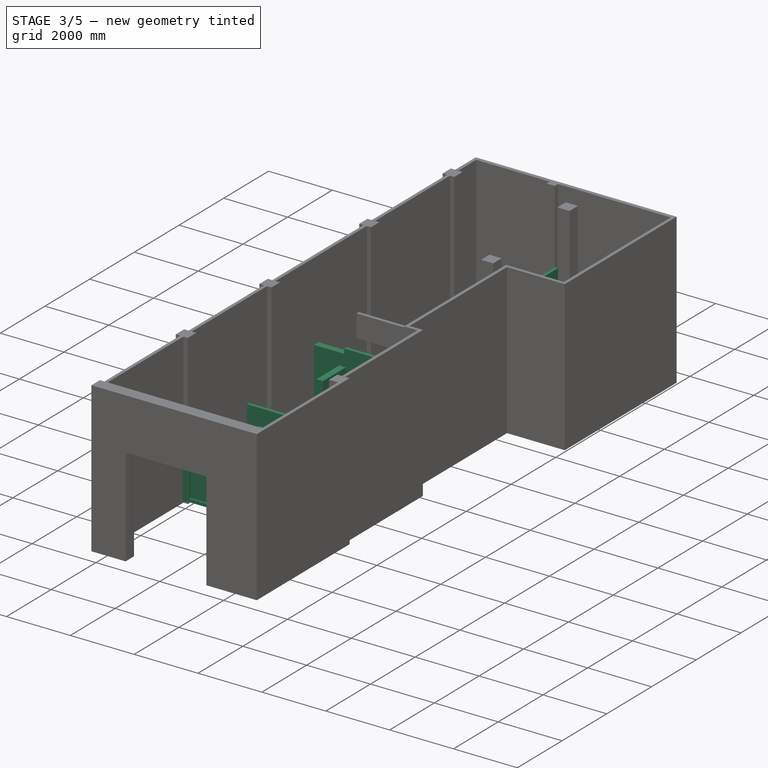
[diagram: stage 3 of 5 — iso view after this stage's code; geometry added in this stage tinted green]
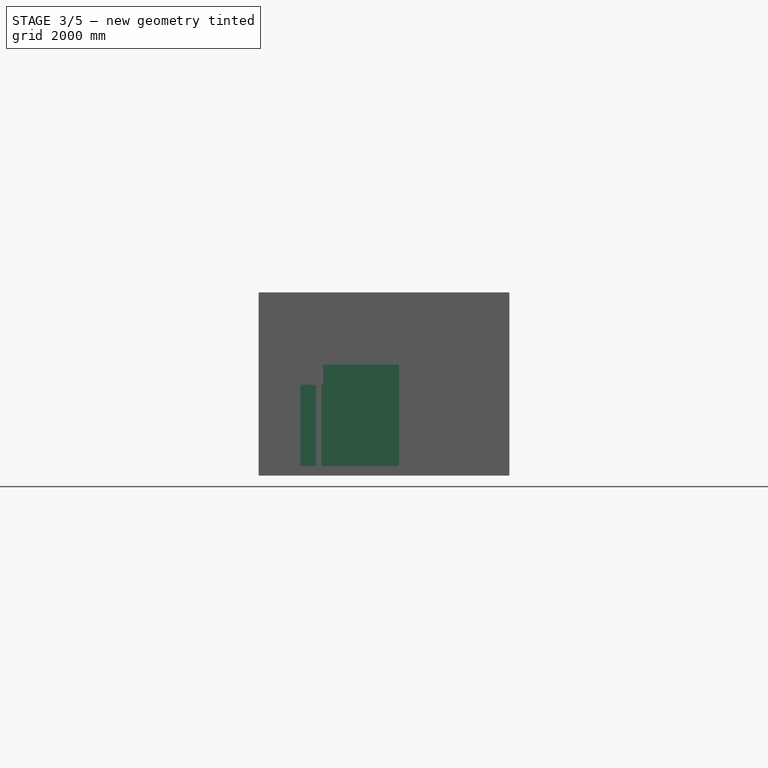
[diagram: stage 3 of 5 — front view after this stage's code; geometry added in this stage tinted green]
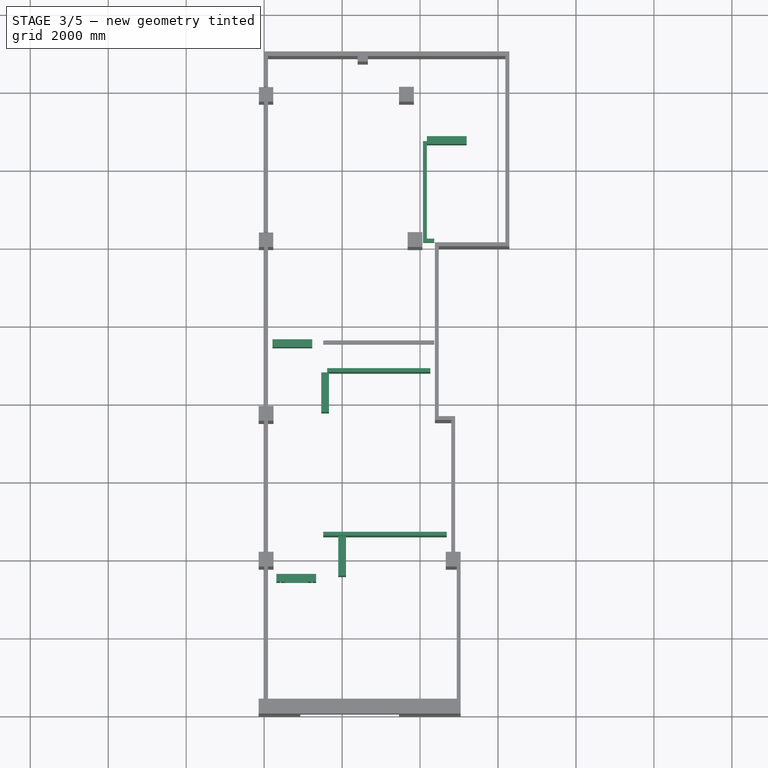
[diagram: stage 3 of 5 — top view after this stage's code; geometry added in this stage tinted green]
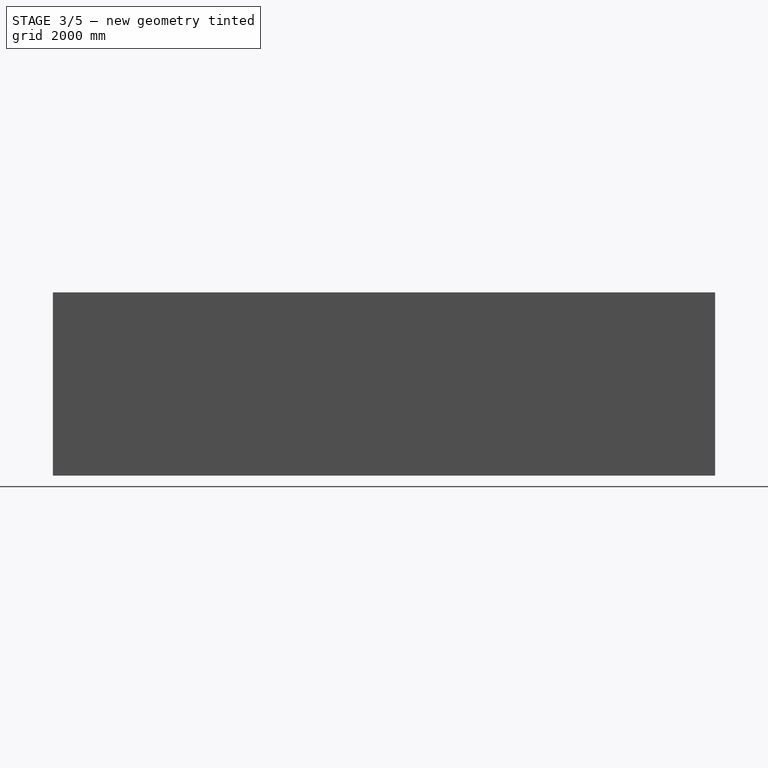
[diagram: stage 3 of 5 — right view after this stage's code; geometry added in this stage tinted green]
FEATURE [Part::Part2DObjectPython] Line045  # Draft 2D object (typed FeaturePython)
  Area = 0
  ChamferSize = 0
  Closed = false
  End = (2000,4595,250)
  FilletRadius = 0
  Length = 4100
  MakeFace = true
  Points = (2) [(2000,495,250),(2000,4595,250)]
  Start = (2000,495,250)
  Subdivisions = 0
FEATURE [Part::FeaturePython] Wall045  label="Steel_Wall_Bed_1_1"  # Arch/BIM 166 (typed FeaturePython)
  Align = 2
  Area = 10660000
  Base = -> Line045
  BlockHeight = 0
  BlockLength = 0
  CountBroken = 0
  CountEntire = 0
  Face = 0
  Height = 2600
  HorizontalArea = 410000
  IfcData = attributes={"GlobalId": {"name": "GlobalId", "type": "IfcGloballyUniqueId", "is_enum": false, "enum_values": []}, "Description": {"... (+533 chars omitted),+1 more (map truncated)
  IfcType = 166
  Joint = 0
  Length = 4100
  MakeBlocks = false
  MoveBase = false
  MoveWithHost = false
  Normal = (0,0,0)
  OffsetFirst = 0
  OffsetSecond = 0
  PerimeterLength = 8400
  PredefinedType = 0
  VerticalArea = 1.75968e+07
  Width = 100
FEATURE [Sketcher::SketchObject] Sketch008
  FullyConstrained = true
  Placement = pos=(3575,-2100,250) rot=(1,0,0;1.5708rad)
  sketch-geometry (8):
    g0: LineSegment StartX=0 StartY=0 StartZ=0 EndX=1020 EndY=0 EndZ=0
    g1: LineSegment StartX=1020 StartY=0 StartZ=0 EndX=1020 EndY=2080 EndZ=0
    g2: LineSegment StartX=1020 StartY=2080 StartZ=0 EndX=0 EndY=2080 EndZ=0
    g3: LineSegment StartX=0 StartY=2080 StartZ=0 EndX=0 EndY=0 EndZ=0
    g4: LineSegment StartX=100 StartY=0 StartZ=0 EndX=920 EndY=0 EndZ=0
    g5: LineSegment StartX=920 StartY=0 StartZ=0 EndX=920 EndY=1980 EndZ=0
    g6: LineSegment StartX=920 StartY=1980 StartZ=0 EndX=100 EndY=1980 EndZ=0
    g7: LineSegment StartX=100 StartY=1980 StartZ=0 EndX=100 EndY=0 EndZ=0
  constraints (23):
    c: Coincident(g0,g1)
    c: Coincident(g1,g2)
    c: Coincident(g2,g3)
    c: Coincident(g3,g0)
    c: Horizontal(g0)
    c: Horizontal(g2)
    c: Vertical(g1)
    c: Vertical(g3)
    c: Coincident(g4,g5)
    c: Coincident(g5,g6)
    c: Coincident(g6,g7)
    c: Coincident(g7,g4)
    c: Horizontal(g4)
    c: Horizontal(g6)
    c: Vertical(g5)
    c: Vertical(g7)
    c: DistanceY(g1) = 2080  'Height'
    c: DistanceX(g0) = 1020  'Width'
    c: DistanceY(g6,g2) = 100  'Frame1'
    c: DistanceX(g2,g6) = 100  'Frame2'
    c: DistanceX(g4,g0) = 100  'Frame3'
    c: DistanceY(g0,g4) = 0
    c: Coincident(g0,g-1)
FEATURE [Part::FeaturePython] Window008  label="Bedroom_1_Door"  # Arch/BIM 41 (typed FeaturePython)
  Area = 2121600
  Base = -> Sketch008
  Frame = 100
  Height = 2080
  HoleDepth = 0
  HoleWire = 0
  HorizontalArea = 0
  Hosts = -> [Wall045]
  IfcData = attributes={"GlobalId": {"name": "GlobalId", "type": "IfcGloballyUniqueId", "is_enum": false, "enum_values": []}, "Description": {"... (+1934 chars omitted),+1 more (map truncated)
  IfcType = 41
  LouvreSpacing = 0
  LouvreWidth = 0
  MoveBase = false
  MoveWithHost = true
  Normal = (0,1,-2e-16)
  Opening = 0
  OperationType = 0
  OverallHeight = 2080
  OverallWidth = 1020
  PerimeterLength = 0
  Placement = pos=(0,0,0) rot=(0,0,1;1.5708rad)
  PredefinedType = 0
  Preset = 6
  SymbolElevation = false
  SymbolPlan = false
  VerticalArea = 0
  Width = 1020
  WindowParts = OuterFrame | Frame | Wire0,Wire1 | 100.0+V | 0.00+V | Door | Solid panel | Wire1,Edge8,Mode2 | 100.0 | 0.0+V
  expr: OverallWidth = .Width.Value
  expr: OverallHeight = .Height.Value
FEATURE [Part::Part2DObjectPython] Line046  # Draft 2D object (typed FeaturePython)
  Area = 0
  ChamferSize = 0
  Closed = false
  End = (4685,4645,250)
  FilletRadius = 0
  Length = 3170
  MakeFace = true
  Points = (2) [(1515,4645,250),(4685,4645,250)]
  Start = (1515,4645,250)
  Subdivisions = 0
FEATURE [Part::FeaturePython] Wall046  label="Steel_Wall_Bed_1_2"  # Arch/BIM 166 (typed FeaturePython)
  Align = 2
  Area = 8242000
  Base = -> Line046
  BlockHeight = 0
  BlockLength = 0
  CountBroken = 0
  CountEntire = 0
  Face = 0
  Height = 2600
  HorizontalArea = 317000
  IfcData = attributes={"GlobalId": {"name": "GlobalId", "type": "IfcGloballyUniqueId", "is_enum": false, "enum_values": []}, "Description": {"... (+533 chars omitted),+1 more (map truncated)
  IfcType = 166
  Joint = 0
  Length = 3170
  MakeBlocks = false
  MoveBase = false
  MoveWithHost = false
  Normal = (0,0,0)
  OffsetFirst = 0
  OffsetSecond = 0
  PerimeterLength = 6540
  PredefinedType = 0
  VerticalArea = 17004000
  Width = 100
FEATURE [Part::Part2DObjectPython] Line047  # Draft 2D object (typed FeaturePython)
  Area = 0
  ChamferSize = 0
  Closed = false
  End = (1565,9595,250)
  FilletRadius = 0
  Length = 4900
  MakeFace = true
  Points = (2) [(1565,4695,250),(1565,9595,250)]
  Start = (1565,4695,250)
  Subdivisions = 0
FEATURE [Part::FeaturePython] Wall047  label="Steel_Wall_Bed_2_1"  # Arch/BIM 166 (typed FeaturePython)
  Align = 2
  Area = 12740000
  Base = -> Line047
  BlockHeight = 0
  BlockLength = 0
  CountBroken = 0
  CountEntire = 0
  Face = 0
  Height = 2600
  HorizontalArea = 490000
  IfcData = attributes={"GlobalId": {"name": "GlobalId", "type": "IfcGloballyUniqueId", "is_enum": false, "enum_values": []}, "Description": {"... (+533 chars omitted),+1 more (map truncated)
  IfcType = 166
  Joint = 0
  Length = 4900
  MakeBlocks = false
  MoveBase = false
  MoveWithHost = false
  Normal = (0,0,0)
  OffsetFirst = 0
  OffsetSecond = 0
  PerimeterLength = 10000
  PredefinedType = 0
  VerticalArea = 22172800
  Width = 100
FEATURE [Sketcher::SketchObject] Sketch009
  FullyConstrained = true
  Placement = pos=(7775,-1665,250) rot=(1,0,0;1.5708rad)
  sketch-geometry (8):
    g0: LineSegment StartX=0 StartY=0 StartZ=0 EndX=1020 EndY=0 EndZ=0
    g1: LineSegment StartX=1020 StartY=0 StartZ=0 EndX=1020 EndY=2080 EndZ=0
    g2: LineSegment StartX=1020 StartY=2080 StartZ=0 EndX=0 EndY=2080 EndZ=0
    g3: LineSegment StartX=0 StartY=2080 StartZ=0 EndX=0 EndY=0 EndZ=0
    g4: LineSegment StartX=100 StartY=0 StartZ=0 EndX=920 EndY=0 EndZ=0
    g5: LineSegment StartX=920 StartY=0 StartZ=0 EndX=920 EndY=1980 EndZ=0
    g6: LineSegment StartX=920 StartY=1980 StartZ=0 EndX=100 EndY=1980 EndZ=0
    g7: LineSegment StartX=100 StartY=1980 StartZ=0 EndX=100 EndY=0 EndZ=0
  constraints (23):
    c: Coincident(g0,g1)
    c: Coincident(g1,g2)
    c: Coincident(g2,g3)
    c: Coincident(g3,g0)
    c: Horizontal(g0)
    c: Horizontal(g2)
    c: Vertical(g1)
    c: Vertical(g3)
    c: Coincident(g4,g5)
    c: Coincident(g5,g6)
    c: Coincident(g6,g7)
    c: Coincident(g7,g4)
    c: Horizontal(g4)
    c: Horizontal(g6)
    c: Vertical(g5)
    c: Vertical(g7)
    c: DistanceY(g1) = 2080  'Height'
    c: DistanceX(g0) = 1020  'Width'
    c: DistanceY(g6,g2) = 100  'Frame1'
    c: DistanceX(g2,g6) = 100  'Frame2'
    c: DistanceX(g4,g0) = 100  'Frame3'
    c: DistanceY(g0,g4) = 0
    c: Coincident(g0,g-1)
FEATURE [Part::FeaturePython] Window009  label="Bedroom_2_Door"  # Arch/BIM 41 (typed FeaturePython)
  Area = 2121600
  Base = -> Sketch009
  Frame = 100
  Height = 2080
  HoleDepth = 0
  HoleWire = 0
  HorizontalArea = 0
  Hosts = -> [Wall047]
  IfcData = attributes={"GlobalId": {"name": "GlobalId", "type": "IfcGloballyUniqueId", "is_enum": false, "enum_values": []}, "Description": {"... (+1934 chars omitted),+1 more (map truncated)
  IfcType = 41
  LouvreSpacing = 0
  LouvreWidth = 0
  MoveBase = false
  MoveWithHost = true
  Normal = (0,1,-2e-16)
  Opening = 0
  OperationType = 0
  OverallHeight = 2080
  OverallWidth = 1020
  PerimeterLength = 0
  Placement = pos=(0,0,0) rot=(0,0,1;1.5708rad)
  PredefinedType = 0
  Preset = 6
  SymbolElevation = false
  SymbolPlan = false
  VerticalArea = 0
  Width = 1020
  WindowParts = OuterFrame | Frame | Wire0,Wire1 | 100.0+V | 0.00+V | Door | Solid panel | Wire1,Edge8,Mode2 | 100.0 | 0.0+V
  expr: OverallWidth = .Width.Value
  expr: OverallHeight = .Height.Value
FEATURE [Part::Part2DObjectPython] Line048  # Draft 2D object (typed FeaturePython)
  Area = 0
  ChamferSize = 0
  Closed = false
  End = (4265,8845,250)
  FilletRadius = 0
  Length = 2650
  MakeFace = true
  Points = (2) [(1615,8845,250),(4265,8845,250)]
  Start = (1615,8845,250)
  Subdivisions = 0
FEATURE [Part::FeaturePython] Wall048  label="Steel_Wall_Bed_2_2"  # Arch/BIM 166 (typed FeaturePython)
  Align = 2
  Area = 6890000
  Base = -> Line048
  BlockHeight = 0
  BlockLength = 0
  CountBroken = 0
  CountEntire = 0
  Face = 0
  Height = 2600
  HorizontalArea = 265000
  IfcData = attributes={"GlobalId": {"name": "GlobalId", "type": "IfcGloballyUniqueId", "is_enum": false, "enum_values": []}, "Description": {"... (+533 chars omitted),+1 more (map truncated)
  IfcType = 166
  Joint = 0
  Length = 2650
  MakeBlocks = false
  MoveBase = false
  MoveWithHost = false
  Normal = (0,0,0)
  OffsetFirst = 0
  OffsetSecond = 0
  PerimeterLength = 5500
  PredefinedType = 0
  VerticalArea = 14300000
  Width = 100
FEATURE [Part::Part2DObjectPython] Line049  # Draft 2D object (typed FeaturePython)
  Area = 0
  ChamferSize = 0
  Closed = false
  End = (1950,3525,250)
  FilletRadius = 0
  Length = 1735
  MakeFace = true
  Points = (2) [(215,3525,250),(1950,3525,250)]
  Start = (215,3525,250)
  Subdivisions = 0
FEATURE [Part::FeaturePython] Wall049  label="Steel_Wall_Corridor_1"  # Arch/BIM 166 (typed FeaturePython)
  Align = 2
  Area = 4511000
  Base = -> Line049
  BlockHeight = 0
  BlockLength = 0
  CountBroken = 0
  CountEntire = 0
  Face = 0
  Height = 2600
  HorizontalArea = 173500
  IfcData = attributes={"GlobalId": {"name": "GlobalId", "type": "IfcGloballyUniqueId", "is_enum": false, "enum_values": []}, "Description": {"... (+533 chars omitted),+1 more (map truncated)
  IfcType = 166
  Joint = 0
  Length = 1735
  MakeBlocks = false
  MoveBase = false
  MoveWithHost = false
  Normal = (0,0,0)
  OffsetFirst = 0
  OffsetSecond = 0
  PerimeterLength = 3670
  PredefinedType = 0
  VerticalArea = 5714800
  Width = 100
FEATURE [Sketcher::SketchObject] Sketch010
  FullyConstrained = true
  Placement = pos=(315,3425,250) rot=(1,0,0;1.5708rad)
  sketch-geometry (16):
    g0: LineSegment StartX=0 StartY=0 StartZ=0 EndX=1020 EndY=0 EndZ=0
    g1: LineSegment StartX=1020 StartY=0 StartZ=0 EndX=1020 EndY=2080 EndZ=0
    g2: LineSegment StartX=1020 StartY=2080 StartZ=0 EndX=0 EndY=2080 EndZ=0
    g3: LineSegment StartX=0 StartY=2080 StartZ=0 EndX=0 EndY=0 EndZ=0
    g4: LineSegment StartX=100 StartY=0 StartZ=0 EndX=920 EndY=0 EndZ=0
    g5: LineSegment StartX=920 StartY=0 StartZ=0 EndX=920 EndY=1980 EndZ=0
    g6: LineSegment StartX=920 StartY=1980 StartZ=0 EndX=100 EndY=1980 EndZ=0
    g7: LineSegment StartX=100 StartY=1980 StartZ=0 EndX=100 EndY=0 EndZ=0
    g8: LineSegment StartX=110 StartY=10 StartZ=0 EndX=910 EndY=10 EndZ=0
    g9: LineSegment StartX=910 StartY=10 StartZ=0 EndX=910 EndY=1970 EndZ=0
    g10: LineSegment StartX=910 StartY=1970 StartZ=0 EndX=110 EndY=1970 EndZ=0
    g11: LineSegment StartX=110 StartY=1970 StartZ=0 EndX=110 EndY=10 EndZ=0
    g12: LineSegment StartX=210 StartY=110 StartZ=0 EndX=810 EndY=110 EndZ=0
    g13: LineSegment StartX=810 StartY=110 StartZ=0 EndX=810 EndY=1870 EndZ=0
    g14: LineSegment StartX=810 StartY=1870 StartZ=0 EndX=210 EndY=1870 EndZ=0
    g15: LineSegment StartX=210 StartY=1870 StartZ=0 EndX=210 EndY=110 EndZ=0
  constraints (47):
    c: Coincident(g0,g1)
    c: Coincident(g1,g2)
    c: Coincident(g2,g3)
    c: Coincident(g3,g0)
    c: Horizontal(g0)
    c: Horizontal(g2)
    c: Vertical(g1)
    c: Vertical(g3)
    c: Coincident(g4,g5)
    c: Coincident(g5,g6)
    c: Coincident(g6,g7)
    c: Coincident(g7,g4)
    c: Horizontal(g4)
    c: Horizontal(g6)
    c: Vertical(g5)
    c: Vertical(g7)
    c: DistanceY(g1) = 2080  'Height'
    c: DistanceX(g0) = 1020  'Width'
    c: DistanceY(g6,g2) = 100  'Frame1'
    c: DistanceX(g2,g6) = 100  'Frame2'
    c: DistanceX(g4,g0) = 100  'Frame3'
    c: DistanceY(g0,g4) = 0
    c: Coincident(g0,g-1)
    c: Coincident(g8,g9)
    c: Coincident(g9,g10)
    c: Coincident(g10,g11)
    c: Coincident(g11,g8)
    c: Horizontal(g8)
    c: Horizontal(g10)
    c: Vertical(g9)
    c: Vertical(g11)
    c: Coincident(g12,g13)
    c: Coincident(g13,g14)
    c: Coincident(g14,g15)
    c: Coincident(g15,g12)
    c: Horizontal(g12)
    c: Horizontal(g14)
    c: Vertical(g13)
    c: Vertical(g15)
    c: DistanceX(g8,g12) = 100  'Frame5'
    c: DistanceY(g8,g12) = 100  'Frame6'
    c: DistanceX(g14,g10) = 100  'Frame8'
    c: DistanceY(g14,g10) = 100  'Frame7'
    c: DistanceX(g4,g8) = 10
    c: DistanceY(g4,g8) = 10
    c: DistanceX(g10,g6) = 10
    c: DistanceY(g10,g6) = 10
FEATURE [Part::FeaturePython] Window010  label="Corridor_Door"  # Arch/BIM 41 (typed FeaturePython)
  Area = 2121600
  Base = -> Sketch010
  Frame = 100
  Height = 2080
  HoleDepth = 0
  HoleWire = 0
  HorizontalArea = 0
  Hosts = -> [Wall049]
  IfcData = attributes={"GlobalId": {"name": "GlobalId", "type": "IfcGloballyUniqueId", "is_enum": false, "enum_values": []}, "Description": {"... (+1934 chars omitted),+1 more (map truncated)
  IfcType = 41
  LouvreSpacing = 0
  LouvreWidth = 0
  MoveBase = false
  MoveWithHost = true
  Normal = (0,1,-2e-16)
  Opening = 0
  OperationType = 0
  OverallHeight = 2080
  OverallWidth = 1020
  PerimeterLength = 0
  PredefinedType = 0
  Preset = 7
  SymbolElevation = false
  SymbolPlan = false
  VerticalArea = 0
  Width = 1020
  WindowParts = OuterFrame | Frame | Wire0,Wire1 | 100.0+V | 0.00+V | InnerFrame | Frame | Wire2,Wire3,Edge8,Mode1 | 100.0 | 0.0+V | InnerGlass | Glass panel | Wire3 | 10.0 | 50.0+V
  expr: OverallWidth = .Width.Value
  expr: OverallHeight = .Height.Value
FEATURE [Part::Part2DObjectPython] Line050  # Draft 2D object (typed FeaturePython)
  Area = 0
  ChamferSize = 0
  Closed = false
  End = (1515,9545,250)
  FilletRadius = 0
  Length = 1300
  MakeFace = true
  Points = (2) [(215,9545,250),(1515,9545,250)]
  Start = (215,9545,250)
  Subdivisions = 0
FEATURE [Part::FeaturePython] Wall050  label="Steel_Wall_Corridor_2"  # Arch/BIM 166 (typed FeaturePython)
  Align = 2
  Area = 4290000
  Base = -> Line050
  BlockHeight = 0
  BlockLength = 0
  CountBroken = 0
  CountEntire = 0
  Face = 0
  Height = 3300
  HorizontalArea = 130000
  IfcData = attributes={"GlobalId": {"name": "GlobalId", "type": "IfcGloballyUniqueId", "is_enum": false, "enum_values": []}, "Description": {"... (+533 chars omitted),+1 more (map truncated)
  IfcType = 166
  Joint = 0
  Length = 1300
  MakeBlocks = false
  MoveBase = false
  MoveWithHost = false
  Normal = (0,0,0)
  OffsetFirst = 0
  OffsetSecond = 0
  PerimeterLength = 2800
  PredefinedType = 0
  VerticalArea = 4996800
  Width = 100
FEATURE [Sketcher::SketchObject] Sketch011
  FullyConstrained = true
  Placement = pos=(215,9445,250) rot=(1,0,0;1.5708rad)
  sketch-geometry (8):
    g0: LineSegment StartX=0 StartY=0 StartZ=0 EndX=1020 EndY=0 EndZ=0
    g1: LineSegment StartX=1020 StartY=0 StartZ=0 EndX=1020 EndY=2080 EndZ=0
    g2: LineSegment StartX=1020 StartY=2080 StartZ=0 EndX=0 EndY=2080 EndZ=0
    g3: LineSegment StartX=0 StartY=2080 StartZ=0 EndX=0 EndY=0 EndZ=0
    g4: LineSegment StartX=100 StartY=0 StartZ=0 EndX=920 EndY=0 EndZ=0
    g5: LineSegment StartX=920 StartY=0 StartZ=0 EndX=920 EndY=1980 EndZ=0
    g6: LineSegment StartX=920 StartY=1980 StartZ=0 EndX=100 EndY=1980 EndZ=0
    g7: LineSegment StartX=100 StartY=1980 StartZ=0 EndX=100 EndY=0 EndZ=0
  constraints (23):
    c: Coincident(g0,g1)
    c: Coincident(g1,g2)
    c: Coincident(g2,g3)
    c: Coincident(g3,g0)
    c: Horizontal(g0)
    c: Horizontal(g2)
    c: Vertical(g1)
    c: Vertical(g3)
    c: Coincident(g4,g5)
    c: Coincident(g5,g6)
    c: Coincident(g6,g7)
    c: Coincident(g7,g4)
    c: Horizontal(g4)
    c: Horizontal(g6)
    c: Vertical(g5)
    c: Vertical(g7)
    c: DistanceY(g1) = 2080  'Height'
    c: DistanceX(g0) = 1020  'Width'
    c: DistanceY(g6,g2) = 100  'Frame1'
    c: DistanceX(g2,g6) = 100  'Frame2'
    c: DistanceX(g4,g0) = 100  'Frame3'
    c: DistanceY(g0,g4) = 0
    c: Coincident(g0,g-1)
FEATURE [Part::FeaturePython] Window011  label="Living_Room_Door"  # Arch/BIM 41 (typed FeaturePython)
  Area = 2121600
  Base = -> Sketch011
  Frame = 100
  Height = 2080
  HoleDepth = 0
  HoleWire = 0
  HorizontalArea = 0
  Hosts = -> [Wall050]
  IfcData = attributes={"GlobalId": {"name": "GlobalId", "type": "IfcGloballyUniqueId", "is_enum": false, "enum_values": []}, "Description": {"... (+1934 chars omitted),+1 more (map truncated)
  IfcType = 41
  LouvreSpacing = 0
  LouvreWidth = 0
  MoveBase = false
  MoveWithHost = true
  Normal = (0,1,-2e-16)
  Opening = 0
  OperationType = 0
  OverallHeight = 2080
  OverallWidth = 1020
  PerimeterLength = 0
  PredefinedType = 0
  Preset = 6
  SymbolElevation = false
  SymbolPlan = false
  VerticalArea = 0
  Width = 1020
  WindowParts = OuterFrame | Frame | Wire0,Wire1 | 100.0+V | 0.00+V | Door | Solid panel | Wire1,Edge8,Mode2 | 100.0 | 0.0+V
  expr: OverallWidth = .Width.Value
  expr: OverallHeight = .Height.Value
FEATURE [Part::Part2DObjectPython] Line051  # Draft 2D object (typed FeaturePython)
  Area = 0
  ChamferSize = 0
  Closed = false
  End = (4125,14705,250)
  FilletRadius = 0
  Length = 2500
  MakeFace = true
  Points = (2) [(4125,12205,250),(4125,14705,250)]
  Start = (4125,12205,250)
  Subdivisions = 0
FEATURE [Part::FeaturePython] Wall051  label="Steel_Wall_Bath_1"  # Arch/BIM 166 (typed FeaturePython)
  Align = 2
  Area = 8250000
  Base = -> Line051
  BlockHeight = 0
  BlockLength = 0
  CountBroken = 0
  CountEntire = 0
  Face = 0
  Height = 3300
  HorizontalArea = 250000
  IfcData = attributes={"GlobalId": {"name": "GlobalId", "type": "IfcGloballyUniqueId", "is_enum": false, "enum_values": []}, "Description": {"... (+533 chars omitted),+1 more (map truncated)
  IfcType = 166
  Joint = 0
  Length = 2500
  MakeBlocks = false
  MoveBase = false
  MoveWithHost = false
  Normal = (0,0,0)
  OffsetFirst = 0
  OffsetSecond = 0
  PerimeterLength = 5200
  PredefinedType = 0
  VerticalArea = 17160000
  Width = 100
FEATURE [Part::Part2DObjectPython] Line052  # Draft 2D object (typed FeaturePython)
  Area = 0
  ChamferSize = 0
  Closed = false
  End = (6075,14755,250)
  FilletRadius = 0
  Length = 2000
  MakeFace = true
  Points = (2) [(4075,14755,250),(6075,14755,250)]
  Start = (4075,14755,250)
  Subdivisions = 0
FEATURE [Part::FeaturePython] Wall052  label="Steel_Wall_Bath_2"  # Arch/BIM 166 (typed FeaturePython)
  Align = 2
  Area = 6600000
  Base = -> Line052
  BlockHeight = 0
  BlockLength = 0
  CountBroken = 0
  CountEntire = 0
  Face = 0
  Height = 3300
  HorizontalArea = 200000
  IfcData = attributes={"GlobalId": {"name": "GlobalId", "type": "IfcGloballyUniqueId", "is_enum": false, "enum_values": []}, "Description": {"... (+533 chars omitted),+1 more (map truncated)
  IfcType = 166
  Joint = 0
  Length = 2000
  MakeBlocks = false
  MoveBase = false
  MoveWithHost = false
  Normal = (0,0,0)
  OffsetFirst = 0
  OffsetSecond = 0
  PerimeterLength = 4200
  PredefinedType = 0
  VerticalArea = 1.00328e+07
  Width = 100
FEATURE [Sketcher::SketchObject] Sketch012
  FullyConstrained = true
  Placement = pos=(4175,14655,250) rot=(1,0,0;1.5708rad)
  sketch-geometry (8):
    g0: LineSegment StartX=0 StartY=0 StartZ=0 EndX=1020 EndY=0 EndZ=0
    g1: LineSegment StartX=1020 StartY=0 StartZ=0 EndX=1020 EndY=2080 EndZ=0
    g2: LineSegment StartX=1020 StartY=2080 StartZ=0 EndX=0 EndY=2080 EndZ=0
    g3: LineSegment StartX=0 StartY=2080 StartZ=0 EndX=0 EndY=0 EndZ=0
    g4: LineSegment StartX=100 StartY=0 StartZ=0 EndX=920 EndY=0 EndZ=0
    g5: LineSegment StartX=920 StartY=0 StartZ=0 EndX=920 EndY=1980 EndZ=0
    g6: LineSegment StartX=920 StartY=1980 StartZ=0 EndX=100 EndY=1980 EndZ=0
    g7: LineSegment StartX=100 StartY=1980 StartZ=0 EndX=100 EndY=0 EndZ=0
  constraints (23):
    c: Coincident(g0,g1)
    c: Coincident(g1,g2)
    c: Coincident(g2,g3)
    c: Coincident(g3,g0)
    c: Horizontal(g0)
    c: Horizontal(g2)
    c: Vertical(g1)
    c: Vertical(g3)
    c: Coincident(g4,g5)
    c: Coincident(g5,g6)
    c: Coincident(g6,g7)
    c: Coincident(g7,g4)
    c: Horizontal(g4)
    c: Horizontal(g6)
    c: Vertical(g5)
    c: Vertical(g7)
    c: DistanceY(g1) = 2080  'Height'
    c: DistanceX(g0) = 1020  'Width'
    c: DistanceY(g6,g2) = 100  'Frame1'
    c: DistanceX(g2,g6) = 100  'Frame2'
    c: DistanceX(g4,g0) = 100  'Frame3'
    c: DistanceY(g0,g4) = 0
    c: Coincident(g0,g-1)
FEATURE [Part::FeaturePython] Window012  label="Bathroom_Door"  # Arch/BIM 41 (typed FeaturePython)
  Area = 2121600
  Base = -> Sketch012
  Frame = 100
  Height = 2080
  HoleDepth = 0
  HoleWire = 0
  HorizontalArea = 0
  Hosts = -> [Wall052]
  IfcData = attributes={"GlobalId": {"name": "GlobalId", "type": "IfcGloballyUniqueId", "is_enum": false, "enum_values": []}, "Description": {"... (+1934 chars omitted),+1 more (map truncated)
  IfcType = 41
  LouvreSpacing = 0
  LouvreWidth = 0
  MoveBase = false
  MoveWithHost = true
  Normal = (0,1,-2e-16)
  Opening = 0
  OperationType = 0
  OverallHeight = 2080
  OverallWidth = 1020
  PerimeterLength = 0
  PredefinedType = 0
  Preset = 6
  SymbolElevation = false
  SymbolPlan = false
  VerticalArea = 0
  Width = 1020
  WindowParts = OuterFrame | Frame | Wire0,Wire1 | 100.0+V | 0.00+V | Door | Solid panel | Wire1,Edge8,Mode2 | 100.0 | 0.0+V
  expr: OverallWidth = .Width.Value
  expr: OverallHeight = .Height.Value
FEATURE [Part::Part2DObjectPython] Line053  # Draft 2D object (typed FeaturePython)
  Area = 0
  ChamferSize = 0
  Closed = false
  End = (4365,12155,2850)
  FilletRadius = 0
  Length = 290
  MakeFace = true
  Points = (2) [(4075,12155,2850),(4365,12155,2850)]
  Start = (4075,12155,2850)
  Subdivisions = 0
FEATURE [Part::FeaturePython] Wall053  label="Steel_Wall_Bath_3"  # Arch/BIM 166 (typed FeaturePython)
  Align = 2
  Area = 203000
  Base = -> Line053
  BlockHeight = 0
  BlockLength = 0
  CountBroken = 0
  CountEntire = 0
  Face = 0
  Height = 700
  HorizontalArea = 29000
  IfcData = attributes={"GlobalId": {"name": "GlobalId", "type": "IfcGloballyUniqueId", "is_enum": false, "enum_values": []}, "Description": {"... (+533 chars omitted),+1 more (map truncated)
  IfcType = 166
  Joint = 0
  Length = 290
  MakeBlocks = false
  MoveBase = false
  MoveWithHost = false
  Normal = (0,0,0)
  OffsetFirst = 0
  OffsetSecond = 0
  PerimeterLength = 780
  PredefinedType = 0
  VerticalArea = 546000
  Width = 100
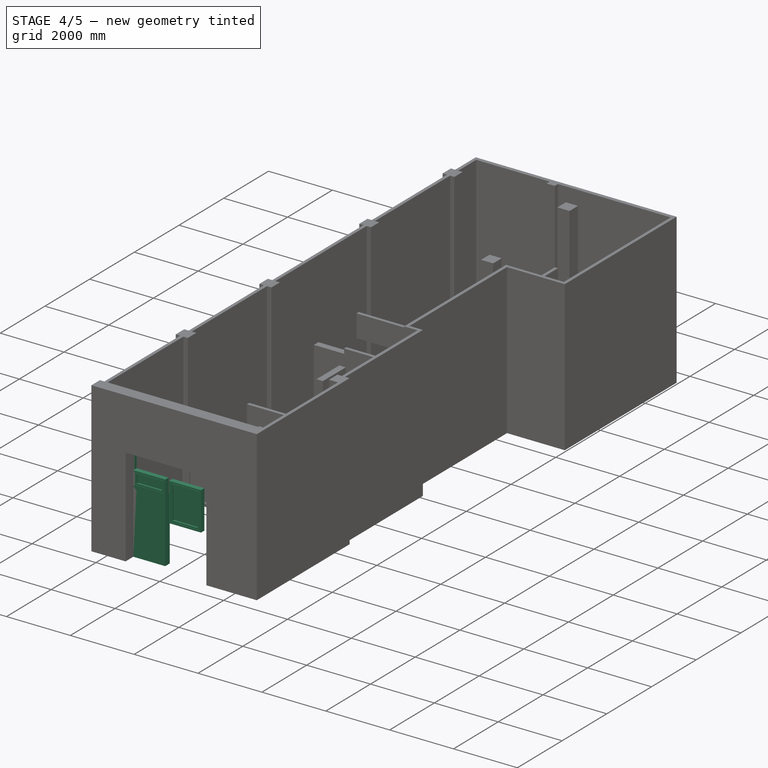
[diagram: stage 4 of 5 — iso view after this stage's code; geometry added in this stage tinted green]
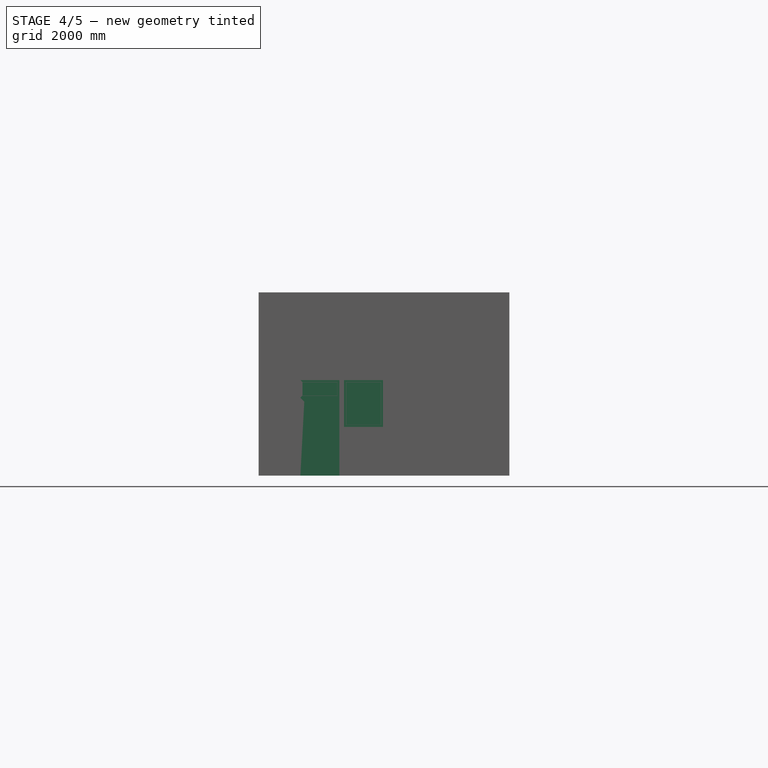
[diagram: stage 4 of 5 — front view after this stage's code; geometry added in this stage tinted green]
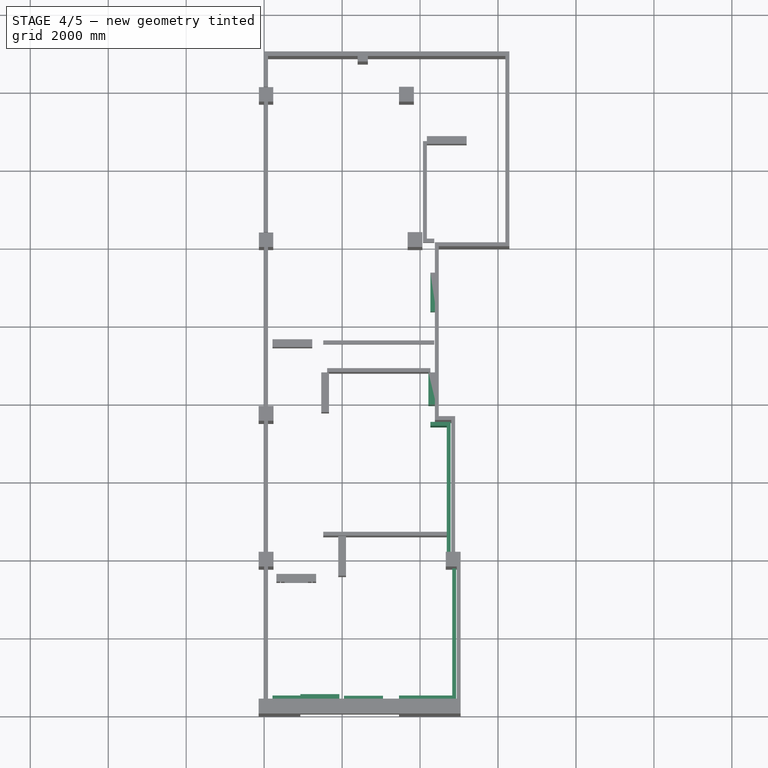
[diagram: stage 4 of 5 — top view after this stage's code; geometry added in this stage tinted green]
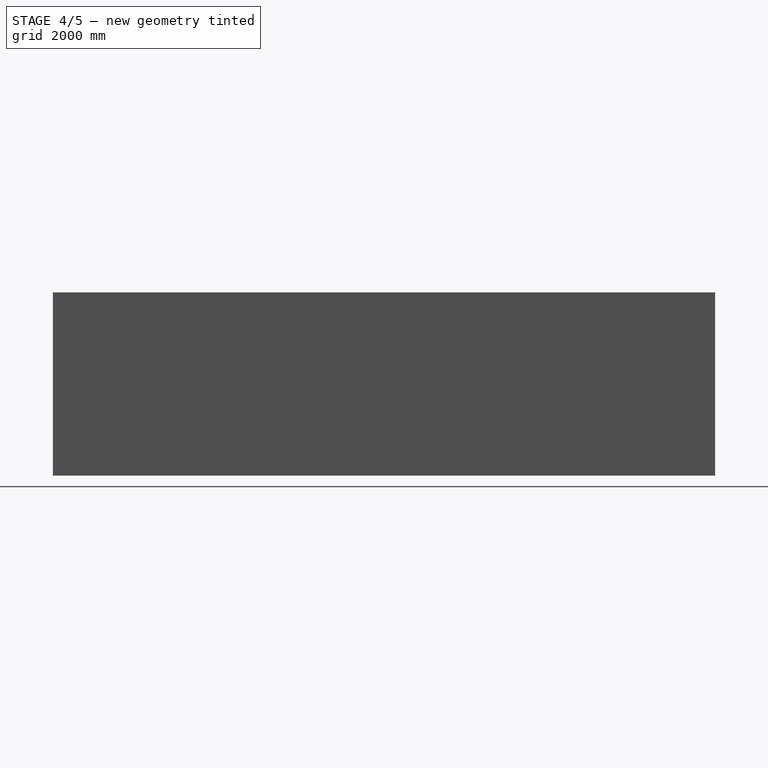
[diagram: stage 4 of 5 — right view after this stage's code; geometry added in this stage tinted green]
FEATURE [Part::Part2DObjectPython] Line037  # Draft 2D object (typed FeaturePython)
  Area = 0
  ChamferSize = 0
  Closed = false
  End = (4315,12105,250)
  FilletRadius = 0
  Length = 2510
  MakeFace = true
  Points = (2) [(4315,9595,250),(4315,12105,250)]
  Start = (4315,9595,250)
  Subdivisions = 0
FEATURE [Part::FeaturePython] Wall037  label="Steel_Wall_10_1"  # Arch/BIM 166 (typed FeaturePython)
  Align = 2
  Area = 8283000
  Base = -> Line037
  BlockHeight = 0
  BlockLength = 0
  CountBroken = 0
  CountEntire = 0
  Face = 0
  Height = 3300
  HorizontalArea = 351000
  IfcData = attributes={"GlobalId": {"name": "GlobalId", "type": "IfcGloballyUniqueId", "is_enum": false, "enum_values": []}, "Description": {"... (+533 chars omitted),+1 more (map truncated)
  IfcType = 166
  Joint = 0
  Length = 2510
  MakeBlocks = false
  MoveBase = false
  MoveWithHost = false
  Normal = (0,0,0)
  OffsetFirst = 0
  OffsetSecond = 0
  PerimeterLength = 5220
  PredefinedType = 0
  VerticalArea = 1.5426e+07
  Width = 100
FEATURE [Sketcher::SketchObject] Sketch003
  FullyConstrained = true
  Placement = pos=(10350,-4415,1450) rot=(1,0,0;1.5708rad)
  sketch-geometry (16):
    g0: LineSegment StartX=0 StartY=0 StartZ=0 EndX=1000 EndY=0 EndZ=0
    g1: LineSegment StartX=1000 StartY=0 StartZ=0 EndX=1000 EndY=1000 EndZ=0
    g2: LineSegment StartX=1000 StartY=1000 StartZ=0 EndX=0 EndY=1000 EndZ=0
    g3: LineSegment StartX=0 StartY=1000 StartZ=0 EndX=0 EndY=0 EndZ=0
    g4: LineSegment StartX=50 StartY=50 StartZ=0 EndX=950 EndY=50 EndZ=0
    g5: LineSegment StartX=950 StartY=50 StartZ=0 EndX=950 EndY=950 EndZ=0
    g6: LineSegment StartX=950 StartY=950 StartZ=0 EndX=50 EndY=950 EndZ=0
    g7: LineSegment StartX=50 StartY=950 StartZ=0 EndX=50 EndY=50 EndZ=0
    g8: LineSegment StartX=55 StartY=55 StartZ=0 EndX=945 EndY=55 EndZ=0
    g9: LineSegment StartX=945 StartY=55 StartZ=0 EndX=945 EndY=945 EndZ=0
    g10: LineSegment StartX=945 StartY=945 StartZ=0 EndX=55 EndY=945 EndZ=0
    g11: LineSegment StartX=55 StartY=945 StartZ=0 EndX=55 EndY=55 EndZ=0
    g12: LineSegment StartX=105 StartY=105 StartZ=0 EndX=895 EndY=105 EndZ=0
    g13: LineSegment StartX=895 StartY=105 StartZ=0 EndX=895 EndY=895 EndZ=0
    g14: LineSegment StartX=895 StartY=895 StartZ=0 EndX=105 EndY=895 EndZ=0
    g15: LineSegment StartX=105 StartY=895 StartZ=0 EndX=105 EndY=105 EndZ=0
  constraints (47):
    c: Coincident(g0,g1)
    c: Coincident(g1,g2)
    c: Coincident(g2,g3)
    c: Coincident(g3,g0)
    c: Horizontal(g0)
    c: Horizontal(g2)
    c: Vertical(g1)
    c: Vertical(g3)
    c: Coincident(g4,g5)
    c: Coincident(g5,g6)
    c: Coincident(g6,g7)
    c: Coincident(g7,g4)
    c: Horizontal(g4)
    c: Horizontal(g6)
    c: Vertical(g5)
    c: Vertical(g7)
    c: DistanceY(g1) = 1000  'Height'
    c: DistanceX(g0) = 1000  'Width'
    c: DistanceY(g6,g2) = 50  'Frame1'
    c: DistanceX(g2,g6) = 50  'Frame2'
    c: DistanceX(g4,g0) = 50  'Frame3'
    c: DistanceY(g0,g4) = 50  'Frame4'
    c: Coincident(g0,g-1)
    c: Coincident(g8,g9)
    c: Coincident(g9,g10)
    c: Coincident(g10,g11)
    c: Coincident(g11,g8)
    c: Horizontal(g8)
    c: Horizontal(g10)
    c: Vertical(g9)
    c: Vertical(g11)
    c: Coincident(g12,g13)
    c: Coincident(g13,g14)
    c: Coincident(g14,g15)
    c: Coincident(g15,g12)
    c: Horizontal(g12)
    c: Horizontal(g14)
    c: Vertical(g13)
    c: Vertical(g15)
    c: DistanceX(g8,g12) = 50  'Frame5'
    c: DistanceY(g8,g12) = 50  'Frame6'
    c: DistanceX(g14,g10) = 50  'Frame8'
    c: DistanceY(g14,g10) = 50  'Frame7'
    c: DistanceX(g4,g8) = 5
    c: DistanceY(g4,g8) = 5
    c: DistanceX(g10,g6) = 5
    c: DistanceY(g10,g6) = 5
FEATURE [Part::FeaturePython] Window003  label="Kitchen_Window"  # Arch/BIM 170 (typed FeaturePython)
  Area = 1000000
  Base = -> Sketch003
  Frame = 50
  Height = 1000
  HoleDepth = 0
  HoleWire = 0
  HorizontalArea = 0
  Hosts = -> [Wall037]
  IfcData = attributes={"GlobalId": {"name": "GlobalId", "type": "IfcGloballyUniqueId", "is_enum": false, "enum_values": []}, "Description": {"... (+1231 chars omitted),+1 more (map truncated)
  IfcType = 170
  LouvreSpacing = 0
  LouvreWidth = 0
  MoveBase = false
  MoveWithHost = true
  Normal = (0,1,-2e-16)
  Opening = 0
  OverallHeight = 1000
  OverallWidth = 1000
  PartitioningType = 0
  PerimeterLength = 0
  Placement = pos=(0,0,0) rot=(0,0,1;1.5708rad)
  PredefinedType = 0
  Preset = 2
  SymbolElevation = false
  SymbolPlan = false
  VerticalArea = 0
  Width = 1000
  WindowParts = OuterFrame | Frame | Wire0,Wire1 | 100.0+V | 0.00+V | InnerFrame | Frame | Wire2,Wire3,Edge8,Mode1 | 100.0 | 0.0+V | InnerGlass | Glass panel | Wire3 | 10.0 | 50.0+V
  expr: OverallWidth = .Width.Value
  expr: OverallHeight = .Height.Value
FEATURE [Part::Part2DObjectPython] Line038  # Draft 2D object (typed FeaturePython)
  Area = 0
  ChamferSize = 0
  Closed = false
  End = (4315,9595,250)
  FilletRadius = 0
  Length = 2080
  MakeFace = true
  Points = (2) [(4315,7515,250),(4315,9595,250)]
  Start = (4315,7515,250)
  Subdivisions = 0
FEATURE [Part::FeaturePython] Wall038  label="Steel_Wall_10_2"  # Arch/BIM 166 (typed FeaturePython)
  Align = 2
  Area = 5408000
  Base = -> Line038
  BlockHeight = 0
  BlockLength = 0
  CountBroken = 0
  CountEntire = 0
  Face = 0
  Height = 2600
  HorizontalArea = 208000
  IfcData = attributes={"GlobalId": {"name": "GlobalId", "type": "IfcGloballyUniqueId", "is_enum": false, "enum_values": []}, "Description": {"... (+533 chars omitted),+1 more (map truncated)
  IfcType = 166
  Joint = 0
  Length = 2080
  MakeBlocks = false
  MoveBase = false
  MoveWithHost = false
  Normal = (0,0,0)
  OffsetFirst = 0
  OffsetSecond = 0
  PerimeterLength = 4360
  PredefinedType = 0
  VerticalArea = 8.2992e+06
  Width = 100
FEATURE [Sketcher::SketchObject] Sketch004
  FullyConstrained = true
  Placement = pos=(7965,-4415,250) rot=(1,0,0;1.5708rad)
  sketch-geometry (16):
    g0: LineSegment StartX=0 StartY=0 StartZ=0 EndX=830 EndY=0 EndZ=0
    g1: LineSegment StartX=830 StartY=0 StartZ=0 EndX=830 EndY=2080 EndZ=0
    g2: LineSegment StartX=830 StartY=2080 StartZ=0 EndX=0 EndY=2080 EndZ=0
    g3: LineSegment StartX=0 StartY=2080 StartZ=0 EndX=0 EndY=0 EndZ=0
    g4: LineSegment StartX=100 StartY=0 StartZ=0 EndX=730 EndY=0 EndZ=0
    g5: LineSegment StartX=730 StartY=0 StartZ=0 EndX=730 EndY=1980 EndZ=0
    g6: LineSegment StartX=730 StartY=1980 StartZ=0 EndX=100 EndY=1980 EndZ=0
    g7: LineSegment StartX=100 StartY=1980 StartZ=0 EndX=100 EndY=0 EndZ=0
    g8: LineSegment StartX=110 StartY=10 StartZ=0 EndX=720 EndY=10 EndZ=0
    g9: LineSegment StartX=720 StartY=10 StartZ=0 EndX=720 EndY=1970 EndZ=0
    g10: LineSegment StartX=720 StartY=1970 StartZ=0 EndX=110 EndY=1970 EndZ=0
    g11: LineSegment StartX=110 StartY=1970 StartZ=0 EndX=110 EndY=10 EndZ=0
    g12: LineSegment StartX=210 StartY=110 StartZ=0 EndX=620 EndY=110 EndZ=0
    g13: LineSegment StartX=620 StartY=110 StartZ=0 EndX=620 EndY=1870 EndZ=0
    g14: LineSegment StartX=620 StartY=1870 StartZ=0 EndX=210 EndY=1870 EndZ=0
    g15: LineSegment StartX=210 StartY=1870 StartZ=0 EndX=210 EndY=110 EndZ=0
  constraints (47):
    c: Coincident(g0,g1)
    c: Coincident(g1,g2)
    c: Coincident(g2,g3)
    c: Coincident(g3,g0)
    c: Horizontal(g0)
    c: Horizontal(g2)
    c: Vertical(g1)
    c: Vertical(g3)
    c: Coincident(g4,g5)
    c: Coincident(g5,g6)
    c: Coincident(g6,g7)
    c: Coincident(g7,g4)
    c: Horizontal(g4)
    c: Horizontal(g6)
    c: Vertical(g5)
    c: Vertical(g7)
    c: DistanceY(g1) = 2080  'Height'
    c: DistanceX(g0) = 830  'Width'
    c: DistanceY(g6,g2) = 100  'Frame1'
    c: DistanceX(g2,g6) = 100  'Frame2'
    c: DistanceX(g4,g0) = 100  'Frame3'
    c: DistanceY(g0,g4) = 0
    c: Coincident(g0,g-1)
    c: Coincident(g8,g9)
    c: Coincident(g9,g10)
    c: Coincident(g10,g11)
    c: Coincident(g11,g8)
    c: Horizontal(g8)
    c: Horizontal(g10)
    c: Vertical(g9)
    c: Vertical(g11)
    c: Coincident(g12,g13)
    c: Coincident(g13,g14)
    c: Coincident(g14,g15)
    c: Coincident(g15,g12)
    c: Horizontal(g12)
    c: Horizontal(g14)
    c: Vertical(g13)
    c: Vertical(g15)
    c: DistanceX(g8,g12) = 100  'Frame5'
    c: DistanceY(g8,g12) = 100  'Frame6'
    c: DistanceX(g14,g10) = 100  'Frame8'
    c: DistanceY(g14,g10) = 100  'Frame7'
    c: DistanceX(g4,g8) = 10
    c: DistanceY(g4,g8) = 10
    c: DistanceX(g10,g6) = 10
    c: DistanceY(g10,g6) = 10
FEATURE [Part::FeaturePython] Window004  label="Bedroom_2__Glass_Door"  # Arch/BIM 41 (typed FeaturePython)
  Area = 1726400
  Base = -> Sketch004
  Frame = 100
  Height = 2080
  HoleDepth = 0
  HoleWire = 0
  HorizontalArea = 0
  Hosts = -> [Wall038]
  IfcData = attributes={"GlobalId": {"name": "GlobalId", "type": "IfcGloballyUniqueId", "is_enum": false, "enum_values": []}, "Description": {"... (+1933 chars omitted),+1 more (map truncated)
  IfcType = 41
  LouvreSpacing = 0
  LouvreWidth = 0
  MoveBase = false
  MoveWithHost = true
  Normal = (0,1,-2e-16)
  Opening = 0
  OperationType = 0
  OverallHeight = 2080
  OverallWidth = 830
  PerimeterLength = 0
  Placement = pos=(0,0,0) rot=(0,0,1;1.5708rad)
  PredefinedType = 0
  Preset = 7
  SymbolElevation = false
  SymbolPlan = false
  VerticalArea = 0
  Width = 830
  WindowParts = OuterFrame | Frame | Wire0,Wire1 | 100.0+V | 0.00+V | InnerFrame | Frame | Wire2,Wire3,Edge8,Mode1 | 100.0 | 0.0+V | InnerGlass | Glass panel | Wire3 | 10.0 | 50.0+V
  expr: OverallWidth = .Width.Value
  expr: OverallHeight = .Height.Value
FEATURE [Part::Part2DObjectPython] Line039  # Draft 2D object (typed FeaturePython)
  Area = 0
  ChamferSize = 0
  Closed = false
  End = (4785,7465,250)
  FilletRadius = 0
  Length = 520
  MakeFace = true
  Points = (2) [(4265,7465,250),(4785,7465,250)]
  Start = (4265,7465,250)
  Subdivisions = 0
FEATURE [Part::FeaturePython] Wall039  label="Steel_Wall_11"  # Arch/BIM 166 (typed FeaturePython)
  Align = 2
  Area = 1352000
  Base = -> Line039
  BlockHeight = 0
  BlockLength = 0
  CountBroken = 0
  CountEntire = 0
  Face = 0
  Height = 2600
  HorizontalArea = 52000
  IfcData = attributes={"GlobalId": {"name": "GlobalId", "type": "IfcGloballyUniqueId", "is_enum": false, "enum_values": []}, "Description": {"... (+533 chars omitted),+1 more (map truncated)
  IfcType = 166
  Joint = 0
  Length = 520
  MakeBlocks = false
  MoveBase = false
  MoveWithHost = false
  Normal = (0,0,0)
  OffsetFirst = 0
  OffsetSecond = 0
  PerimeterLength = 1240
  PredefinedType = 0
  VerticalArea = 3.224e+06
  Width = 100
FEATURE [Part::Part2DObjectPython] Line040  # Draft 2D object (typed FeaturePython)
  Area = 0
  ChamferSize = 0
  Closed = false
  End = (4735,7415,250)
  FilletRadius = 0
  Length = 3250
  MakeFace = true
  Points = (2) [(4735,4165,250),(4735,7415,250)]
  Start = (4735,4165,250)
  Subdivisions = 0
FEATURE [Part::FeaturePython] Wall040  label="Steel_Wall_12"  # Arch/BIM 166 (typed FeaturePython)
  Align = 2
  Area = 8450000
  Base = -> Line040
  BlockHeight = 0
  BlockLength = 0
  CountBroken = 0
  CountEntire = 0
  Face = 0
  Height = 2600
  HorizontalArea = 325000
  IfcData = attributes={"GlobalId": {"name": "GlobalId", "type": "IfcGloballyUniqueId", "is_enum": false, "enum_values": []}, "Description": {"... (+533 chars omitted),+1 more (map truncated)
  IfcType = 166
  Joint = 0
  Length = 3250
  MakeBlocks = false
  MoveBase = false
  MoveWithHost = false
  Normal = (0,0,0)
  OffsetFirst = 0
  OffsetSecond = 0
  PerimeterLength = 6700
  PredefinedType = 0
  VerticalArea = 17420000
  Width = 100
FEATURE [Part::Part2DObjectPython] Line041  # Draft 2D object (typed FeaturePython)
  Area = 0
  ChamferSize = 0
  Closed = false
  End = (4875,3755,250)
  FilletRadius = 0
  Length = 3360
  MakeFace = true
  Points = (2) [(4875,395,250),(4875,3755,250)]
  Start = (4875,395,250)
  Subdivisions = 0
FEATURE [Part::FeaturePython] Wall041  label="Steel_Wall_13"  # Arch/BIM 166 (typed FeaturePython)
  Align = 2
  Area = 8736000
  Base = -> Line041
  BlockHeight = 0
  BlockLength = 0
  CountBroken = 0
  CountEntire = 0
  Face = 0
  Height = 2600
  HorizontalArea = 336000
  IfcData = attributes={"GlobalId": {"name": "GlobalId", "type": "IfcGloballyUniqueId", "is_enum": false, "enum_values": []}, "Description": {"... (+533 chars omitted),+1 more (map truncated)
  IfcType = 166
  Joint = 0
  Length = 3360
  MakeBlocks = false
  MoveBase = false
  MoveWithHost = false
  Normal = (0,0,0)
  OffsetFirst = 0
  OffsetSecond = 0
  PerimeterLength = 6920
  PredefinedType = 0
  VerticalArea = 17992000
  Width = 100
FEATURE [Part::Part2DObjectPython] Line042  # Draft 2D object (typed FeaturePython)
  Area = 0
  ChamferSize = 0
  Closed = false
  End = (930,445,250)
  FilletRadius = 0
  Length = 715
  MakeFace = true
  Points = (2) [(215,445,250),(930,445,250)]
  Start = (215,445,250)
  Subdivisions = 0
FEATURE [Part::FeaturePython] Wall042  label="Steel_Wall_14_1"  # Arch/BIM 166 (typed FeaturePython)
  Align = 2
  Area = 1859000
  Base = -> Line042
  BlockHeight = 0
  BlockLength = 0
  CountBroken = 0
  CountEntire = 0
  Face = 0
  Height = 2600
  HorizontalArea = 71500
  IfcData = attributes={"GlobalId": {"name": "GlobalId", "type": "IfcGloballyUniqueId", "is_enum": false, "enum_values": []}, "Description": {"... (+533 chars omitted),+1 more (map truncated)
  IfcType = 166
  Joint = 0
  Length = 715
  MakeBlocks = false
  MoveBase = false
  MoveWithHost = false
  Normal = (0,0,0)
  OffsetFirst = 0
  OffsetSecond = 0
  PerimeterLength = 1630
  PredefinedType = 0
  VerticalArea = 4238000
  Width = 100
FEATURE [Part::Part2DObjectPython] Line043  # Draft 2D object (typed FeaturePython)
  Area = 0
  ChamferSize = 0
  Closed = false
  End = (3460,445,250)
  FilletRadius = 0
  Length = 2530
  MakeFace = true
  Points = (2) [(930,445,250),(3460,445,250)]
  Start = (930,445,250)
  Subdivisions = 0
FEATURE [Part::FeaturePython] Wall043  label="Steel_Wall_14_2"  # Arch/BIM 166 (typed FeaturePython)
  Align = 2
  Area = 7159900
  Base = -> Line043
  BlockHeight = 0
  BlockLength = 0
  CountBroken = 0
  CountEntire = 0
  Face = 0
  Height = 2830
  HorizontalArea = 353000
  IfcData = attributes={"GlobalId": {"name": "GlobalId", "type": "IfcGloballyUniqueId", "is_enum": false, "enum_values": []}, "Description": {"... (+533 chars omitted),+1 more (map truncated)
  IfcType = 166
  Joint = 0
  Length = 2530
  MakeBlocks = false
  MoveBase = false
  MoveWithHost = false
  Normal = (0,0,0)
  OffsetFirst = 0
  OffsetSecond = 0
  PerimeterLength = 5260
  PredefinedType = 0
  VerticalArea = 8.3258e+06
  Width = 100
FEATURE [Sketcher::SketchObject] Sketch005
  FullyConstrained = true
  Placement = pos=(930,345,0) rot=(1,0,0;1.5708rad)
  sketch-geometry (8):
    g0: LineSegment StartX=0 StartY=0 StartZ=0 EndX=1000 EndY=0 EndZ=0
    g1: LineSegment StartX=1000 StartY=0 StartZ=0 EndX=1000 EndY=2000 EndZ=0
    g2: LineSegment StartX=1000 StartY=2000 StartZ=0 EndX=0 EndY=2000 EndZ=0
    g3: LineSegment StartX=0 StartY=2000 StartZ=0 EndX=0 EndY=0 EndZ=0
    g4: LineSegment StartX=100 StartY=0 StartZ=0 EndX=900 EndY=0 EndZ=0
    g5: LineSegment StartX=900 StartY=0 StartZ=0 EndX=900 EndY=1900 EndZ=0
    g6: LineSegment StartX=900 StartY=1900 StartZ=0 EndX=100 EndY=1900 EndZ=0
    g7: LineSegment StartX=100 StartY=1900 StartZ=0 EndX=100 EndY=0 EndZ=0
  constraints (23):
    c: Coincident(g0,g1)
    c: Coincident(g1,g2)
    c: Coincident(g2,g3)
    c: Coincident(g3,g0)
    c: Horizontal(g0)
    c: Horizontal(g2)
    c: Vertical(g1)
    c: Vertical(g3)
    c: Coincident(g4,g5)
    c: Coincident(g5,g6)
    c: Coincident(g6,g7)
    c: Coincident(g7,g4)
    c: Horizontal(g4)
    c: Horizontal(g6)
    c: Vertical(g5)
    c: Vertical(g7)
    c: DistanceY(g1) = 2000  'Height'
    c: DistanceX(g0) = 1000  'Width'
    c: DistanceY(g6,g2) = 100  'Frame1'
    c: DistanceX(g2,g6) = 100  'Frame2'
    c: DistanceX(g4,g0) = 100  'Frame3'
    c: DistanceY(g0,g4) = 0
    c: Coincident(g0,g-1)
FEATURE [Part::FeaturePython] Window005  label="Front_Door"  # Arch/BIM 41 (typed FeaturePython)
  Area = 2000000
  Base = -> Sketch005
  Frame = 100
  Height = 2000
  HoleDepth = 0
  HoleWire = 0
  HorizontalArea = 0
  Hosts = -> [Wall043]
  IfcData = attributes={"GlobalId": {"name": "GlobalId", "type": "IfcGloballyUniqueId", "is_enum": false, "enum_values": []}, "Description": {"... (+1934 chars omitted),+1 more (map truncated)
  IfcType = 41
  LouvreSpacing = 0
  LouvreWidth = 0
  MoveBase = false
  MoveWithHost = true
  Normal = (0,1,-2e-16)
  Opening = 0
  OperationType = 0
  OverallHeight = 2000
  OverallWidth = 1000
  PerimeterLength = 0
  PredefinedType = 0
  Preset = 6
  SymbolElevation = false
  SymbolPlan = false
  VerticalArea = 0
  Width = 1000
  WindowParts = OuterFrame | Frame | Wire0,Wire1 | 100.0+V | 0.00+V | Door | Solid panel | Wire1,Edge8,Mode2 | 100.0 | 0.0+V
  expr: OverallWidth = .Width.Value
  expr: OverallHeight = .Height.Value
FEATURE [Sketcher::SketchObject] Sketch006
  FullyConstrained = true
  Placement = pos=(2050,345,1250) rot=(1,0,0;1.5708rad)
  sketch-geometry (16):
    g0: LineSegment StartX=0 StartY=0 StartZ=0 EndX=1000 EndY=0 EndZ=0
    g1: LineSegment StartX=1000 StartY=0 StartZ=0 EndX=1000 EndY=1200 EndZ=0
    g2: LineSegment StartX=1000 StartY=1200 StartZ=0 EndX=0 EndY=1200 EndZ=0
    g3: LineSegment StartX=0 StartY=1200 StartZ=0 EndX=0 EndY=0 EndZ=0
    g4: LineSegment StartX=50 StartY=50 StartZ=0 EndX=950 EndY=50 EndZ=0
    g5: LineSegment StartX=950 StartY=50 StartZ=0 EndX=950 EndY=1150 EndZ=0
    g6: LineSegment StartX=950 StartY=1150 StartZ=0 EndX=50 EndY=1150 EndZ=0
    g7: LineSegment StartX=50 StartY=1150 StartZ=0 EndX=50 EndY=50 EndZ=0
    g8: LineSegment StartX=55 StartY=55 StartZ=0 EndX=945 EndY=55 EndZ=0
    g9: LineSegment StartX=945 StartY=55 StartZ=0 EndX=945 EndY=1145 EndZ=0
    g10: LineSegment StartX=945 StartY=1145 StartZ=0 EndX=55 EndY=1145 EndZ=0
    g11: LineSegment StartX=55 StartY=1145 StartZ=0 EndX=55 EndY=55 EndZ=0
    g12: LineSegment StartX=105 StartY=105 StartZ=0 EndX=895 EndY=105 EndZ=0
    g13: LineSegment StartX=895 StartY=105 StartZ=0 EndX=895 EndY=1095 EndZ=0
    g14: LineSegment StartX=895 StartY=1095 StartZ=0 EndX=105 EndY=1095 EndZ=0
    g15: LineSegment StartX=105 StartY=1095 StartZ=0 EndX=105 EndY=105 EndZ=0
  constraints (47):
    c: Coincident(g0,g1)
    c: Coincident(g1,g2)
    c: Coincident(g2,g3)
    c: Coincident(g3,g0)
    c: Horizontal(g0)
    c: Horizontal(g2)
    c: Vertical(g1)
    c: Vertical(g3)
    c: Coincident(g4,g5)
    c: Coincident(g5,g6)
    c: Coincident(g6,g7)
    c: Coincident(g7,g4)
    c: Horizontal(g4)
    c: Horizontal(g6)
    c: Vertical(g5)
    c: Vertical(g7)
    c: DistanceY(g1) = 1200  'Height'
    c: DistanceX(g0) = 1000  'Width'
    c: DistanceY(g6,g2) = 50  'Frame1'
    c: DistanceX(g2,g6) = 50  'Frame2'
    c: DistanceX(g4,g0) = 50  'Frame3'
    c: DistanceY(g0,g4) = 50  'Frame4'
    c: Coincident(g0,g-1)
    c: Coincident(g8,g9)
    c: Coincident(g9,g10)
    c: Coincident(g10,g11)
    c: Coincident(g11,g8)
    c: Horizontal(g8)
    c: Horizontal(g10)
    c: Vertical(g9)
    c: Vertical(g11)
    c: Coincident(g12,g13)
    c: Coincident(g13,g14)
    c: Coincident(g14,g15)
    c: Coincident(g15,g12)
    c: Horizontal(g12)
    c: Horizontal(g14)
    c: Vertical(g13)
    c: Vertical(g15)
    c: DistanceX(g8,g12) = 50  'Frame5'
    c: DistanceY(g8,g12) = 50  'Frame6'
    c: DistanceX(g14,g10) = 50  'Frame8'
    c: DistanceY(g14,g10) = 50  'Frame7'
    c: DistanceX(g4,g8) = 5
    c: DistanceY(g4,g8) = 5
    c: DistanceX(g10,g6) = 5
    c: DistanceY(g10,g6) = 5
FEATURE [Part::FeaturePython] Window006  label="Bedroom_1_Window001"  # Arch/BIM 170 (typed FeaturePython)
  Area = 1200000
  Base = -> Sketch006
  Frame = 50
  Height = 1200
  HoleDepth = 0
  HoleWire = 0
  HorizontalArea = 0
  Hosts = -> [Wall043]
  IfcData = attributes={"GlobalId": {"name": "GlobalId", "type": "IfcGloballyUniqueId", "is_enum": false, "enum_values": []}, "Description": {"... (+1231 chars omitted),+1 more (map truncated)
  IfcType = 170
  LouvreSpacing = 0
  LouvreWidth = 0
  MoveBase = false
  MoveWithHost = true
  Normal = (0,1,-2e-16)
  Opening = 0
  OverallHeight = 1200
  OverallWidth = 1000
  PartitioningType = 0
  PerimeterLength = 0
  PredefinedType = 0
  Preset = 2
  SymbolElevation = false
  SymbolPlan = false
  VerticalArea = 0
  Width = 1000
  WindowParts = OuterFrame | Frame | Wire0,Wire1 | 100.0+V | 0.00+V | InnerFrame | Frame | Wire2,Wire3,Edge8,Mode1 | 100.0 | 0.0+V | InnerGlass | Glass panel | Wire3 | 10.0 | 50.0+V
  expr: OverallWidth = .Width.Value
  expr: OverallHeight = .Height.Value
FEATURE [Sketcher::SketchObject] Sketch007
  FullyConstrained = true
  Placement = pos=(930,345,2000) rot=(1,0,0;1.5708rad)
  sketch-geometry (16):
    g0: LineSegment StartX=0 StartY=0 StartZ=0 EndX=1000 EndY=0 EndZ=0
    g1: LineSegment StartX=1000 StartY=0 StartZ=0 EndX=1000 EndY=450 EndZ=0
    g2: LineSegment StartX=1000 StartY=450 StartZ=0 EndX=0 EndY=450 EndZ=0
    g3: LineSegment StartX=0 StartY=450 StartZ=0 EndX=0 EndY=0 EndZ=0
    g4: LineSegment StartX=50 StartY=50 StartZ=0 EndX=950 EndY=50 EndZ=0
    g5: LineSegment StartX=950 StartY=50 StartZ=0 EndX=950 EndY=400 EndZ=0
    g6: LineSegment StartX=950 StartY=400 StartZ=0 EndX=50 EndY=400 EndZ=0
    g7: LineSegment StartX=50 StartY=400 StartZ=0 EndX=50 EndY=50 EndZ=0
    g8: LineSegment StartX=55 StartY=55 StartZ=0 EndX=945 EndY=55 EndZ=0
    g9: LineSegment StartX=945 StartY=55 StartZ=0 EndX=945 EndY=395 EndZ=0
    g10: LineSegment StartX=945 StartY=395 StartZ=0 EndX=55 EndY=395 EndZ=0
    g11: LineSegment StartX=55 StartY=395 StartZ=0 EndX=55 EndY=55 EndZ=0
    g12: LineSegment StartX=105 StartY=105 StartZ=0 EndX=895 EndY=105 EndZ=0
    g13: LineSegment StartX=895 StartY=105 StartZ=0 EndX=895 EndY=345 EndZ=0
    g14: LineSegment StartX=895 StartY=345 StartZ=0 EndX=105 EndY=345 EndZ=0
    g15: LineSegment StartX=105 StartY=345 StartZ=0 EndX=105 EndY=105 EndZ=0
  constraints (47):
    c: Coincident(g0,g1)
    c: Coincident(g1,g2)
    c: Coincident(g2,g3)
    c: Coincident(g3,g0)
    c: Horizontal(g0)
    c: Horizontal(g2)
    c: Vertical(g1)
    c: Vertical(g3)
    c: Coincident(g4,g5)
    c: Coincident(g5,g6)
    c: Coincident(g6,g7)
    c: Coincident(g7,g4)
    c: Horizontal(g4)
    c: Horizontal(g6)
    c: Vertical(g5)
    c: Vertical(g7)
    c: DistanceY(g1) = 450  'Height'
    c: DistanceX(g0) = 1000  'Width'
    c: DistanceY(g6,g2) = 50  'Frame1'
    c: DistanceX(g2,g6) = 50  'Frame2'
    c: DistanceX(g4,g0) = 50  'Frame3'
    c: DistanceY(g0,g4) = 50  'Frame4'
    c: Coincident(g0,g-1)
    c: Coincident(g8,g9)
    c: Coincident(g9,g10)
    c: Coincident(g10,g11)
    c: Coincident(g11,g8)
    c: Horizontal(g8)
    c: Horizontal(g10)
    c: Vertical(g9)
    c: Vertical(g11)
    c: Coincident(g12,g13)
    c: Coincident(g13,g14)
    c: Coincident(g14,g15)
    c: Coincident(g15,g12)
    c: Horizontal(g12)
    c: Horizontal(g14)
    c: Vertical(g13)
    c: Vertical(g15)
    c: DistanceX(g8,g12) = 50  'Frame5'
    c: DistanceY(g8,g12) = 50  'Frame6'
    c: DistanceX(g14,g10) = 50  'Frame8'
    c: DistanceY(g14,g10) = 50  'Frame7'
    c: DistanceX(g4,g8) = 5
    c: DistanceY(g4,g8) = 5
    c: DistanceX(g10,g6) = 5
    c: DistanceY(g10,g6) = 5
FEATURE [Part::FeaturePython] Window007  label="Corridor_Window"  # Arch/BIM 170 (typed FeaturePython)
  Area = 450000
  Base = -> Sketch007
  Frame = 50
  Height = 450
  HoleDepth = 0
  HoleWire = 0
  HorizontalArea = 0
  Hosts = -> [Wall043]
  IfcData = attributes={"GlobalId": {"name": "GlobalId", "type": "IfcGloballyUniqueId", "is_enum": false, "enum_values": []}, "Description": {"... (+1230 chars omitted),+1 more (map truncated)
  IfcType = 170
  LouvreSpacing = 0
  LouvreWidth = 0
  MoveBase = false
  MoveWithHost = true
  Normal = (0,1,-2e-16)
  Opening = 0
  OverallHeight = 450
  OverallWidth = 1000
  PartitioningType = 0
  PerimeterLength = 0
  PredefinedType = 0
  Preset = 2
  SymbolElevation = false
  SymbolPlan = false
  VerticalArea = 0
  Width = 1000
  WindowParts = OuterFrame | Frame | Wire0,Wire1 | 100.0+V | 0.00+V | InnerFrame | Frame | Wire2,Wire3,Edge8,Mode1 | 100.0 | 0.0+V | InnerGlass | Glass panel | Wire3 | 10.0 | 50.0+V
  expr: OverallWidth = .Width.Value
  expr: OverallHeight = .Height.Value
FEATURE [Part::Part2DObjectPython] Line044  # Draft 2D object (typed FeaturePython)
  Area = 0
  ChamferSize = 0
  Closed = false
  End = (4825,445,250)
  FilletRadius = 0
  Length = 1365
  MakeFace = true
  Points = (2) [(3460,445,250),(4825,445,250)]
  Start = (3460,445,250)
  Subdivisions = 0
FEATURE [Part::FeaturePython] Wall044  label="Steel_Wall_14_3"  # Arch/BIM 166 (typed FeaturePython)
  Align = 2
  Area = 3549000
  Base = -> Line044
  BlockHeight = 0
  BlockLength = 0
  CountBroken = 0
  CountEntire = 0
  Face = 0
  Height = 2600
  HorizontalArea = 136500
  IfcData = attributes={"GlobalId": {"name": "GlobalId", "type": "IfcGloballyUniqueId", "is_enum": false, "enum_values": []}, "Description": {"... (+533 chars omitted),+1 more (map truncated)
  IfcType = 166
  Joint = 0
  Length = 1365
  MakeBlocks = false
  MoveBase = false
  MoveWithHost = false
  Normal = (0,0,0)
  OffsetFirst = 0
  OffsetSecond = 0
  PerimeterLength = 2930
  PredefinedType = 0
  VerticalArea = 7618000
  Width = 100
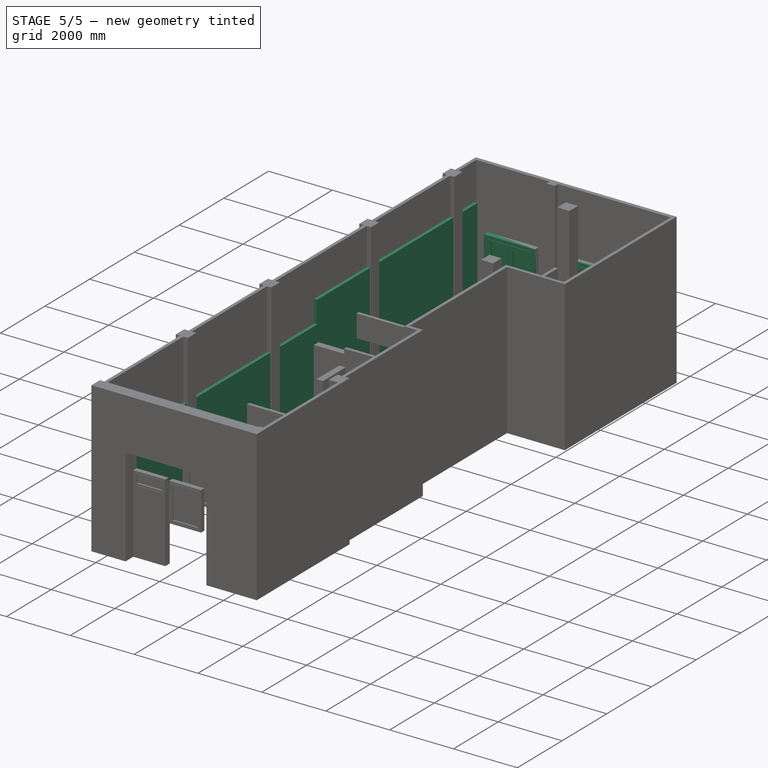
[diagram: stage 5 of 5 — iso view after this stage's code; geometry added in this stage tinted green]
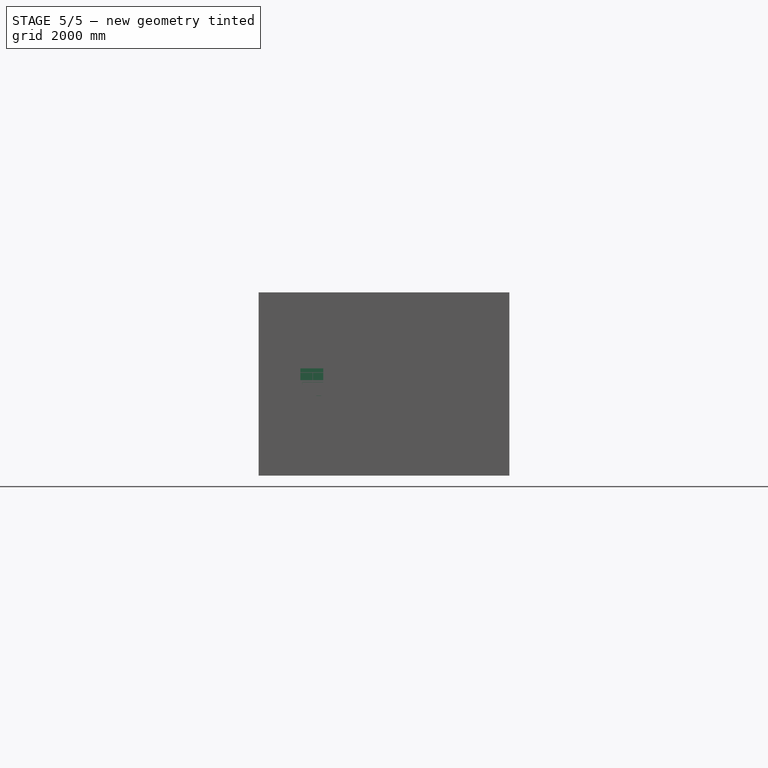
[diagram: stage 5 of 5 — front view after this stage's code; geometry added in this stage tinted green]
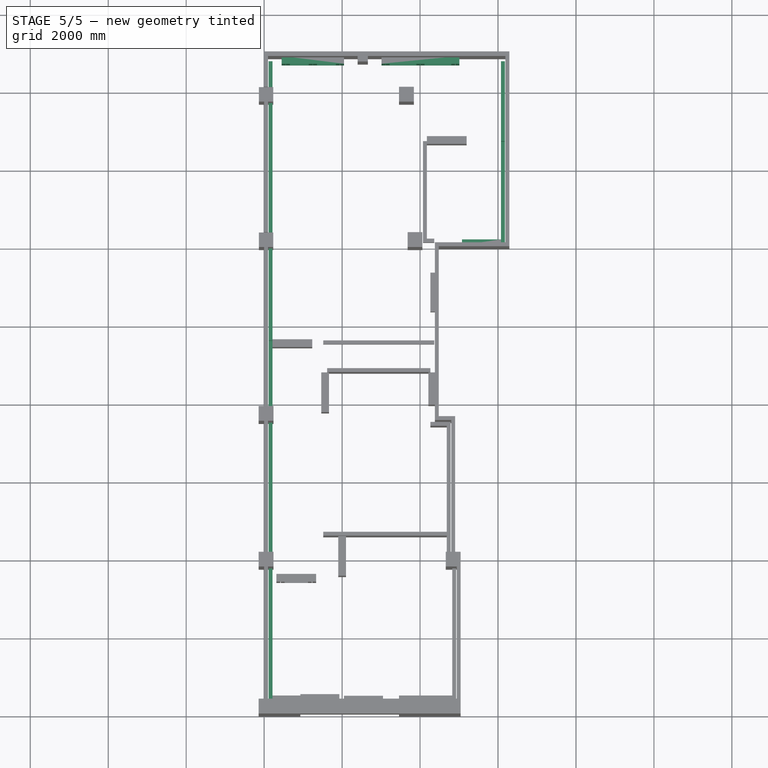
[diagram: stage 5 of 5 — top view after this stage's code; geometry added in this stage tinted green]
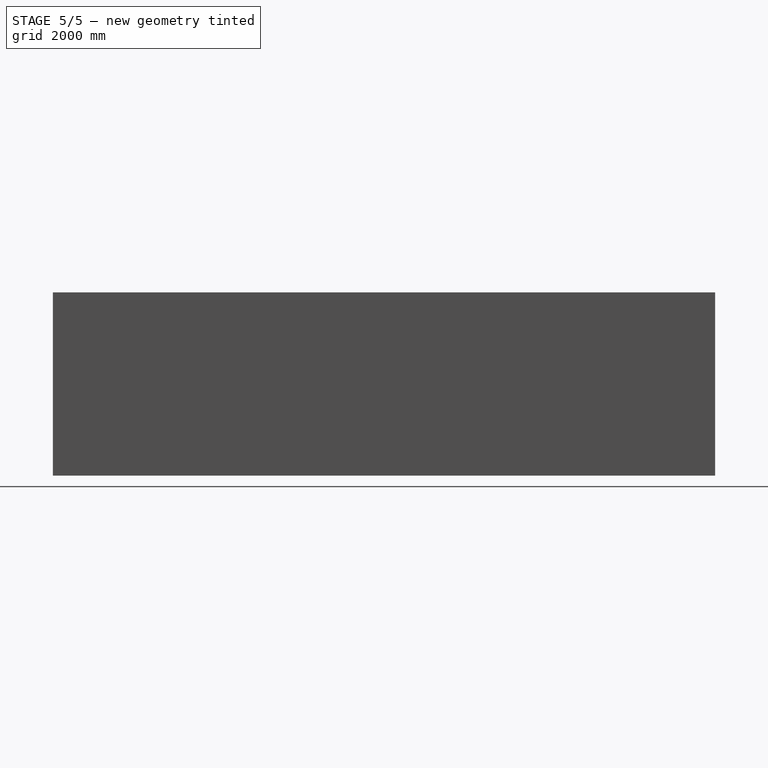
[diagram: stage 5 of 5 — right view after this stage's code; geometry added in this stage tinted green]
FEATURE [App::GeometryPython] BuildingPart  label="Existing Building"  # Arch/BIM 10 (typed FeaturePython)
  Area = 223062000
  BuildingType = 0
  CompositionType = 0
  ElevationOfRefHeight = 0
  ElevationOfTerrain = 0
  Group = -> [Wall,Wall001,Wall002,Wall003,Wall004,Wall005,Wall006,Wall007,Wall008,Wall009,Wall010,Wall011,Wall012,Wall013,Wall014,Wall015,Wall016,Wall017,Wall018,Wall019,Wall020,Wall021,Wall022,Wall023]
  Height = 0
  HeightPropagate = true
  IfcData = attributes={"GlobalId": {"name": "GlobalId", "type": "IfcGloballyUniqueId", "is_enum": false, "enum_values": []}, "Description": {"... (+1010 chars omitted),+1 more (map truncated)
  IfcType = 10
  LevelOffset = 0
  LongName = Building
FEATURE [Part::Part2DObjectPython] Line026  # Draft 2D object (typed FeaturePython)
  Area = 0
  ChamferSize = 0
  Closed = false
  End = (165,3755,250)
  FilletRadius = 0
  Length = 3360
  MakeFace = true
  Points = (2) [(165,395,250),(165,3755,250)]
  Start = (165,395,250)
  Subdivisions = 0
FEATURE [Part::FeaturePython] Wall026  label="Steel_Wall_1"  # Arch/BIM 166 (typed FeaturePython)
  Align = 2
  Area = 8736000
  Base = -> Line026
  BlockHeight = 0
  BlockLength = 0
  CountBroken = 0
  CountEntire = 0
  Face = 0
  Height = 2600
  HorizontalArea = 336000
  IfcData = attributes={"GlobalId": {"name": "GlobalId", "type": "IfcGloballyUniqueId", "is_enum": false, "enum_values": []}, "Description": {"... (+533 chars omitted),+1 more (map truncated)
  IfcType = 166
  Joint = 0
  Length = 3360
  MakeBlocks = false
  MoveBase = false
  MoveWithHost = false
  Normal = (0,0,0)
  OffsetFirst = 0
  OffsetSecond = 0
  PerimeterLength = 6920
  PredefinedType = 0
  VerticalArea = 17992000
  Width = 100
FEATURE [Part::Part2DObjectPython] Line027  # Draft 2D object (typed FeaturePython)
  Area = 0
  ChamferSize = 0
  Closed = false
  End = (165,7495,250)
  FilletRadius = 0
  Length = 3330
  MakeFace = true
  Points = (2) [(165,4165,250),(165,7495,250)]
  Start = (165,4165,250)
  Subdivisions = 0
FEATURE [Part::FeaturePython] Wall027  label="Steel_Wall_2"  # Arch/BIM 166 (typed FeaturePython)
  Align = 2
  Area = 8658000
  Base = -> Line027
  BlockHeight = 0
  BlockLength = 0
  CountBroken = 0
  CountEntire = 0
  Face = 0
  Height = 2600
  HorizontalArea = 333000
  IfcData = attributes={"GlobalId": {"name": "GlobalId", "type": "IfcGloballyUniqueId", "is_enum": false, "enum_values": []}, "Description": {"... (+533 chars omitted),+1 more (map truncated)
  IfcType = 166
  Joint = 0
  Length = 3330
  MakeBlocks = false
  MoveBase = false
  MoveWithHost = false
  Normal = (0,0,0)
  OffsetFirst = 0
  OffsetSecond = 0
  PerimeterLength = 6860
  PredefinedType = 0
  VerticalArea = 17836000
  Width = 100
FEATURE [Part::Part2DObjectPython] Line028  # Draft 2D object (typed FeaturePython)
  Area = 0
  ChamferSize = 0
  Closed = false
  End = (165,9595,250)
  FilletRadius = 0
  Length = 1690
  MakeFace = true
  Points = (2) [(165,7905,250),(165,9595,250)]
  Start = (165,7905,250)
  Subdivisions = 0
FEATURE [Part::FeaturePython] Wall028  label="Steel_Wall_3_1"  # Arch/BIM 166 (typed FeaturePython)
  Align = 2
  Area = 4394000
  Base = -> Line028
  BlockHeight = 0
  BlockLength = 0
  CountBroken = 0
  CountEntire = 0
  Face = 0
  Height = 2600
  HorizontalArea = 169000
  IfcData = attributes={"GlobalId": {"name": "GlobalId", "type": "IfcGloballyUniqueId", "is_enum": false, "enum_values": []}, "Description": {"... (+533 chars omitted),+1 more (map truncated)
  IfcType = 166
  Joint = 0
  Length = 1690
  MakeBlocks = false
  MoveBase = false
  MoveWithHost = false
  Normal = (0,0,0)
  OffsetFirst = 0
  OffsetSecond = 0
  PerimeterLength = 3580
  PredefinedType = 0
  VerticalArea = 9.308e+06
  Width = 100
FEATURE [Part::Part2DObjectPython] Line029  # Draft 2D object (typed FeaturePython)
  Area = 0
  ChamferSize = 0
  Closed = false
  End = (165,11955,250)
  FilletRadius = 0
  Length = 2360
  MakeFace = true
  Points = (2) [(165,9595,250),(165,11955,250)]
  Start = (165,9595,250)
  Subdivisions = 0
FEATURE [Part::FeaturePython] Wall029  label="Steel_Wall_3_2"  # Arch/BIM 166 (typed FeaturePython)
  Align = 2
  Area = 7788000
  Base = -> Line029
  BlockHeight = 0
  BlockLength = 0
  CountBroken = 0
  CountEntire = 0
  Face = 0
  Height = 3300
  HorizontalArea = 236000
  IfcData = attributes={"GlobalId": {"name": "GlobalId", "type": "IfcGloballyUniqueId", "is_enum": false, "enum_values": []}, "Description": {"... (+533 chars omitted),+1 more (map truncated)
  IfcType = 166
  Joint = 0
  Length = 2360
  MakeBlocks = false
  MoveBase = false
  MoveWithHost = false
  Normal = (0,0,0)
  OffsetFirst = 0
  OffsetSecond = 0
  PerimeterLength = 4920
  PredefinedType = 0
  VerticalArea = 16236000
  Width = 100
FEATURE [Part::Part2DObjectPython] Line030  # Draft 2D object (typed FeaturePython)
  Area = 0
  ChamferSize = 0
  Closed = false
  End = (165,15685,250)
  FilletRadius = 0
  Length = 3320
  MakeFace = true
  Points = (2) [(165,12365,250),(165,15685,250)]
  Start = (165,12365,250)
  Subdivisions = 0
FEATURE [Part::FeaturePython] Wall030  label="Steel_Wall_4"  # Arch/BIM 166 (typed FeaturePython)
  Align = 2
  Area = 10956000
  Base = -> Line030
  BlockHeight = 0
  BlockLength = 0
  CountBroken = 0
  CountEntire = 0
  Face = 0
  Height = 3300
  HorizontalArea = 332000
  IfcData = attributes={"GlobalId": {"name": "GlobalId", "type": "IfcGloballyUniqueId", "is_enum": false, "enum_values": []}, "Description": {"... (+533 chars omitted),+1 more (map truncated)
  IfcType = 166
  Joint = 0
  Length = 3320
  MakeBlocks = false
  MoveBase = false
  MoveWithHost = false
  Normal = (0,0,0)
  OffsetFirst = 0
  OffsetSecond = 0
  PerimeterLength = 6840
  PredefinedType = 0
  VerticalArea = 2.2572e+07
  Width = 100
FEATURE [Part::Part2DObjectPython] Line031  # Draft 2D object (typed FeaturePython)
  Area = 0
  ChamferSize = 0
  Closed = false
  End = (165,16755,250)
  FilletRadius = 0
  Length = 660
  MakeFace = true
  Points = (2) [(165,16095,250),(165,16755,250)]
  Start = (165,16095,250)
  Subdivisions = 0
FEATURE [Part::FeaturePython] Wall031  label="Steel_Wall_5"  # Arch/BIM 166 (typed FeaturePython)
  Align = 2
  Area = 2178000
  Base = -> Line031
  BlockHeight = 0
  BlockLength = 0
  CountBroken = 0
  CountEntire = 0
  Face = 0
  Height = 3300
  HorizontalArea = 66000
  IfcData = attributes={"GlobalId": {"name": "GlobalId", "type": "IfcGloballyUniqueId", "is_enum": false, "enum_values": []}, "Description": {"... (+533 chars omitted),+1 more (map truncated)
  IfcType = 166
  Joint = 0
  Length = 660
  MakeBlocks = false
  MoveBase = false
  MoveWithHost = false
  Normal = (0,0,0)
  OffsetFirst = 0
  OffsetSecond = 0
  PerimeterLength = 1520
  PredefinedType = 0
  VerticalArea = 5.016e+06
  Width = 100
FEATURE [Part::Part2DObjectPython] Line032  # Draft 2D object (typed FeaturePython)
  Area = 0
  ChamferSize = 0
  Closed = false
  End = (2385,16805,250)
  FilletRadius = 0
  Length = 2270
  MakeFace = true
  Points = (2) [(115,16805,250),(2385,16805,250)]
  Start = (115,16805,250)
  Subdivisions = 0
FEATURE [Part::FeaturePython] Wall032  label="Steel_Wall_6"  # Arch/BIM 166 (typed FeaturePython)
  Align = 2
  Area = 7491000
  Base = -> Line032
  BlockHeight = 0
  BlockLength = 0
  CountBroken = 0
  CountEntire = 0
  Face = 0
  Height = 3300
  HorizontalArea = 227000
  IfcData = attributes={"GlobalId": {"name": "GlobalId", "type": "IfcGloballyUniqueId", "is_enum": false, "enum_values": []}, "Description": {"... (+533 chars omitted),+1 more (map truncated)
  IfcType = 166
  Joint = 0
  Length = 2270
  MakeBlocks = false
  MoveBase = false
  MoveWithHost = false
  Normal = (0,0,0)
  OffsetFirst = 0
  OffsetSecond = 0
  PerimeterLength = 4740
  PredefinedType = 0
  VerticalArea = 8142000
  Width = 100
FEATURE [Sketcher::SketchObject] Sketch
  FullyConstrained = true
  Placement = pos=(450,16705,250) rot=(1,0,0;1.5708rad)
  sketch-geometry (24):
    g0: LineSegment StartX=0 StartY=0 StartZ=0 EndX=1600 EndY=0 EndZ=0
    g1: LineSegment StartX=1600 StartY=0 StartZ=0 EndX=1600 EndY=2500 EndZ=0
    g2: LineSegment StartX=1600 StartY=2500 StartZ=0 EndX=0 EndY=2500 EndZ=0
    g3: LineSegment StartX=0 StartY=2500 StartZ=0 EndX=0 EndY=0 EndZ=0
    g4: LineSegment StartX=100 StartY=100 StartZ=0 EndX=1500 EndY=100 EndZ=0
    g5: LineSegment StartX=1500 StartY=100 StartZ=0 EndX=1500 EndY=2400 EndZ=0
    g6: LineSegment StartX=1500 StartY=2400 StartZ=0 EndX=100 EndY=2400 EndZ=0
    g7: LineSegment StartX=100 StartY=2400 StartZ=0 EndX=100 EndY=100 EndZ=0
    g8: LineSegment StartX=110 StartY=110 StartZ=0 EndX=795 EndY=110 EndZ=0
    g9: LineSegment StartX=795 StartY=110 StartZ=0 EndX=795 EndY=2390 EndZ=0
    g10: LineSegment StartX=795 StartY=2390 StartZ=0 EndX=110 EndY=2390 EndZ=0
    g11: LineSegment StartX=110 StartY=2390 StartZ=0 EndX=110 EndY=110 EndZ=0
    g12: LineSegment StartX=210 StartY=210 StartZ=0 EndX=695 EndY=210 EndZ=0
    g13: LineSegment StartX=695 StartY=210 StartZ=0 EndX=695 EndY=2290 EndZ=0
    g14: LineSegment StartX=695 StartY=2290 StartZ=0 EndX=210 EndY=2290 EndZ=0
    g15: LineSegment StartX=210 StartY=2290 StartZ=0 EndX=210 EndY=210 EndZ=0
    g16: LineSegment StartX=805 StartY=110 StartZ=0 EndX=1490 EndY=110 EndZ=0
    g17: LineSegment StartX=1490 StartY=110 StartZ=0 EndX=1490 EndY=2390 EndZ=0
    g18: LineSegment StartX=1490 StartY=2390 StartZ=0 EndX=805 EndY=2390 EndZ=0
    g19: LineSegment StartX=805 StartY=2390 StartZ=0 EndX=805 EndY=110 EndZ=0
    g20: LineSegment StartX=905 StartY=210 StartZ=0 EndX=1390 EndY=210 EndZ=0
    g21: LineSegment StartX=1390 StartY=210 StartZ=0 EndX=1390 EndY=2290 EndZ=0
    g22: LineSegment StartX=1390 StartY=2290 StartZ=0 EndX=905 EndY=2290 EndZ=0
    g23: LineSegment StartX=905 StartY=2290 StartZ=0 EndX=905 EndY=210 EndZ=0
  constraints (71):
    c: Coincident(g0,g1)
    c: Coincident(g1,g2)
    c: Coincident(g2,g3)
    c: Coincident(g3,g0)
    c: Horizontal(g0)
    c: Horizontal(g2)
    c: Vertical(g1)
    c: Vertical(g3)
    c: Coincident(g4,g5)
    c: Coincident(g5,g6)
    c: Coincident(g6,g7)
    c: Coincident(g7,g4)
    c: Horizontal(g4)
    c: Horizontal(g6)
    c: Vertical(g5)
    c: Vertical(g7)
    c: DistanceY(g1) = 2500  'Height'
    c: DistanceX(g0) = 1600  'Width'
    c: DistanceY(g6,g2) = 100  'Frame1'
    c: DistanceX(g2,g6) = 100  'Frame2'
    c: DistanceX(g4,g0) = 100  'Frame3'
    c: DistanceY(g0,g4) = 100  'Frame4'
    c: Coincident(g0,g-1)
    c: Coincident(g8,g9)
    c: Coincident(g9,g10)
    c: Coincident(g10,g11)
    c: Coincident(g11,g8)
    c: Horizontal(g8)
    c: Horizontal(g10)
    c: Vertical(g9)
    c: Vertical(g11)
    c: Coincident(g12,g13)
    c: Coincident(g13,g14)
    c: Coincident(g14,g15)
    c: Coincident(g15,g12)
    c: Horizontal(g12)
    c: Horizontal(g14)
    c: Vertical(g13)
    c: Vertical(g15)
    c: Coincident(g16,g17)
    c: Coincident(g17,g18)
    c: Coincident(g18,g19)
    c: Coincident(g19,g16)
    c: Horizontal(g16)
    c: Horizontal(g18)
    c: Vertical(g17)
    c: Vertical(g19)
    c: Coincident(g20,g21)
    c: Coincident(g21,g22)
    c: Coincident(g22,g23)
    c: Coincident(g23,g20)
    c: Horizontal(g20)
    c: Horizontal(g22)
    c: Vertical(g21)
    c: Vertical(g23)
    c: DistanceY(g8,g12) = 100  'Frame5'
    c: DistanceX(g8,g12) = 100  'Frame6'
    c: DistanceX(g21,g17) = 100  'Frame7'
    c: DistanceY(g21,g17) = 100  'Frame8'
    c: DistanceX(g16,g20) = 100  'Frame9'
    c: DistanceX(g14,g10) = 100  'Frame10'
    c: Equal(g22,g14)
    c: DistanceY(g8,g16) = 0
    c: DistanceY(g10,g18) = 0
    c: DistanceX(g4,g8) = 10
    c: DistanceY(g4,g8) = 10
    c: DistanceX(g6,g18) = -10
    c: DistanceY(g6,g18) = -10
    c: DistanceX(g9,g19) = 10
    c: PointOnObject(g13,g22)
    c: PointOnObject(g20,g12)
FEATURE [Part::FeaturePython] Window  label="Garden_Door_1"  # Arch/BIM 170 (typed FeaturePython)
  Area = 4000000
  Base = -> Sketch
  Frame = 100
  Height = 2500
  HoleDepth = 0
  HoleWire = 0
  HorizontalArea = 0
  Hosts = -> [Wall032]
  IfcData = attributes={"GlobalId": {"name": "GlobalId", "type": "IfcGloballyUniqueId", "is_enum": false, "enum_values": []}, "Description": {"... (+1231 chars omitted),+1 more (map truncated)
  IfcType = 170
  LouvreSpacing = 0
  LouvreWidth = 0
  MoveBase = false
  MoveWithHost = true
  Normal = (0,1,-2e-16)
  Opening = 0
  OverallHeight = 2500
  OverallWidth = 1600
  PartitioningType = 0
  PerimeterLength = 0
  PredefinedType = 0
  Preset = 3
  SymbolElevation = false
  SymbolPlan = false
  VerticalArea = 0
  Width = 1600
  WindowParts = OuterFrame | Frame | Wire0,Wire1 | 100.0+V | 0.00+V | LeftFrame | Frame | Wire2,Wire3,Edge8,Mode1 | 100.0 | 0.0+V | LeftGlass | Glass panel | Wire3 | 10.0 | 50.0+V | RightFrame | Frame | Wire4,Wire5,Edge6,Mode2 | 100.0 | 0.0+V | RightGlass | Glass panel | Wire5 | 10.0 | 50.0+V
  expr: OverallWidth = .Width.Value
  expr: OverallHeight = .Height.Value
FEATURE [Part::Part2DObjectPython] Line033  # Draft 2D object (typed FeaturePython)
  Area = 0
  ChamferSize = 0
  Closed = false
  End = (6175,16805,250)
  FilletRadius = 0
  Length = 3500
  MakeFace = true
  Points = (2) [(2675,16805,250),(6175,16805,250)]
  Start = (2675,16805,250)
  Subdivisions = 0
FEATURE [Part::FeaturePython] Wall033  label="Steel_Wall_7"  # Arch/BIM 166 (typed FeaturePython)
  Align = 2
  Area = 11550000
  Base = -> Line033
  BlockHeight = 0
  BlockLength = 0
  CountBroken = 0
  CountEntire = 0
  Face = 0
  Height = 3300
  HorizontalArea = 350000
  IfcData = attributes={"GlobalId": {"name": "GlobalId", "type": "IfcGloballyUniqueId", "is_enum": false, "enum_values": []}, "Description": {"... (+533 chars omitted),+1 more (map truncated)
  IfcType = 166
  Joint = 0
  Length = 3500
  MakeBlocks = false
  MoveBase = false
  MoveWithHost = false
  Normal = (0,0,0)
  OffsetFirst = 0
  OffsetSecond = 0
  PerimeterLength = 7200
  PredefinedType = 0
  VerticalArea = 1.426e+07
  Width = 100
FEATURE [Sketcher::SketchObject] Sketch001
  FullyConstrained = true
  Placement = pos=(3010,16705,250) rot=(1,0,0;1.5708rad)
  sketch-geometry (24):
    g0: LineSegment StartX=0 StartY=0 StartZ=0 EndX=2000 EndY=0 EndZ=0
    g1: LineSegment StartX=2000 StartY=0 StartZ=0 EndX=2000 EndY=2500 EndZ=0
    g2: LineSegment StartX=2000 StartY=2500 StartZ=0 EndX=0 EndY=2500 EndZ=0
    g3: LineSegment StartX=0 StartY=2500 StartZ=0 EndX=0 EndY=0 EndZ=0
    g4: LineSegment StartX=100 StartY=100 StartZ=0 EndX=1900 EndY=100 EndZ=0
    g5: LineSegment StartX=1900 StartY=100 StartZ=0 EndX=1900 EndY=2400 EndZ=0
    g6: LineSegment StartX=1900 StartY=2400 StartZ=0 EndX=100 EndY=2400 EndZ=0
    g7: LineSegment StartX=100 StartY=2400 StartZ=0 EndX=100 EndY=100 EndZ=0
    g8: LineSegment StartX=110 StartY=110 StartZ=0 EndX=995 EndY=110 EndZ=0
    g9: LineSegment StartX=995 StartY=110 StartZ=0 EndX=995 EndY=2390 EndZ=0
    g10: LineSegment StartX=995 StartY=2390 StartZ=0 EndX=110 EndY=2390 EndZ=0
    g11: LineSegment StartX=110 StartY=2390 StartZ=0 EndX=110 EndY=110 EndZ=0
    g12: LineSegment StartX=210 StartY=210 StartZ=0 EndX=895 EndY=210 EndZ=0
    g13: LineSegment StartX=895 StartY=210 StartZ=0 EndX=895 EndY=2290 EndZ=0
    g14: LineSegment StartX=895 StartY=2290 StartZ=0 EndX=210 EndY=2290 EndZ=0
    g15: LineSegment StartX=210 StartY=2290 StartZ=0 EndX=210 EndY=210 EndZ=0
    g16: LineSegment StartX=1005 StartY=110 StartZ=0 EndX=1890 EndY=110 EndZ=0
    g17: LineSegment StartX=1890 StartY=110 StartZ=0 EndX=1890 EndY=2390 EndZ=0
    g18: LineSegment StartX=1890 StartY=2390 StartZ=0 EndX=1005 EndY=2390 EndZ=0
    g19: LineSegment StartX=1005 StartY=2390 StartZ=0 EndX=1005 EndY=110 EndZ=0
    g20: LineSegment StartX=1105 StartY=210 StartZ=0 EndX=1790 EndY=210 EndZ=0
    g21: LineSegment StartX=1790 StartY=210 StartZ=0 EndX=1790 EndY=2290 EndZ=0
    g22: LineSegment StartX=1790 StartY=2290 StartZ=0 EndX=1105 EndY=2290 EndZ=0
    g23: LineSegment StartX=1105 StartY=2290 StartZ=0 EndX=1105 EndY=210 EndZ=0
  constraints (71):
    c: Coincident(g0,g1)
    c: Coincident(g1,g2)
    c: Coincident(g2,g3)
    c: Coincident(g3,g0)
    c: Horizontal(g0)
    c: Horizontal(g2)
    c: Vertical(g1)
    c: Vertical(g3)
    c: Coincident(g4,g5)
    c: Coincident(g5,g6)
    c: Coincident(g6,g7)
    c: Coincident(g7,g4)
    c: Horizontal(g4)
    c: Horizontal(g6)
    c: Vertical(g5)
    c: Vertical(g7)
    c: DistanceY(g1) = 2500  'Height'
    c: DistanceX(g0) = 2000  'Width'
    c: DistanceY(g6,g2) = 100  'Frame1'
    c: DistanceX(g2,g6) = 100  'Frame2'
    c: DistanceX(g4,g0) = 100  'Frame3'
    c: DistanceY(g0,g4) = 100  'Frame4'
    c: Coincident(g0,g-1)
    c: Coincident(g8,g9)
    c: Coincident(g9,g10)
    c: Coincident(g10,g11)
    c: Coincident(g11,g8)
    c: Horizontal(g8)
    c: Horizontal(g10)
    c: Vertical(g9)
    c: Vertical(g11)
    c: Coincident(g12,g13)
    c: Coincident(g13,g14)
    c: Coincident(g14,g15)
    c: Coincident(g15,g12)
    c: Horizontal(g12)
    c: Horizontal(g14)
    c: Vertical(g13)
    c: Vertical(g15)
    c: Coincident(g16,g17)
    c: Coincident(g17,g18)
    c: Coincident(g18,g19)
    c: Coincident(g19,g16)
    c: Horizontal(g16)
    c: Horizontal(g18)
    c: Vertical(g17)
    c: Vertical(g19)
    c: Coincident(g20,g21)
    c: Coincident(g21,g22)
    c: Coincident(g22,g23)
    c: Coincident(g23,g20)
    c: Horizontal(g20)
    c: Horizontal(g22)
    c: Vertical(g21)
    c: Vertical(g23)
    c: DistanceY(g8,g12) = 100  'Frame5'
    c: DistanceX(g8,g12) = 100  'Frame6'
    c: DistanceX(g21,g17) = 100  'Frame7'
    c: DistanceY(g21,g17) = 100  'Frame8'
    c: DistanceX(g16,g20) = 100  'Frame9'
    c: DistanceX(g14,g10) = 100  'Frame10'
    c: Equal(g22,g14)
    c: DistanceY(g8,g16) = 0
    c: DistanceY(g10,g18) = 0
    c: DistanceX(g4,g8) = 10
    c: DistanceY(g4,g8) = 10
    c: DistanceX(g6,g18) = -10
    c: DistanceY(g6,g18) = -10
    c: DistanceX(g9,g19) = 10
    c: PointOnObject(g13,g22)
    c: PointOnObject(g20,g12)
FEATURE [Part::FeaturePython] Window001  label="Garden_Door_2"  # Arch/BIM 170 (typed FeaturePython)
  Area = 5000000
  Base = -> Sketch001
  Frame = 100
  Height = 2500
  HoleDepth = 0
  HoleWire = 0
  HorizontalArea = 0
  Hosts = -> [Wall033]
  IfcData = attributes={"GlobalId": {"name": "GlobalId", "type": "IfcGloballyUniqueId", "is_enum": false, "enum_values": []}, "Description": {"... (+1231 chars omitted),+1 more (map truncated)
  IfcType = 170
  LouvreSpacing = 0
  LouvreWidth = 0
  MoveBase = false
  MoveWithHost = true
  Normal = (0,1,-2e-16)
  Opening = 0
  OverallHeight = 2500
  OverallWidth = 2000
  PartitioningType = 0
  PerimeterLength = 0
  PredefinedType = 0
  Preset = 3
  SymbolElevation = false
  SymbolPlan = false
  VerticalArea = 0
  Width = 2000
  WindowParts = OuterFrame | Frame | Wire0,Wire1 | 100.0+V | 0.00+V | LeftFrame | Frame | Wire2,Wire3,Edge8,Mode1 | 100.0 | 0.0+V | LeftGlass | Glass panel | Wire3 | 10.0 | 50.0+V | RightFrame | Frame | Wire4,Wire5,Edge6,Mode2 | 100.0 | 0.0+V | RightGlass | Glass panel | Wire5 | 10.0 | 50.0+V
  expr: OverallWidth = .Width.Value
  expr: OverallHeight = .Height.Value
FEATURE [Part::Part2DObjectPython] Line034  # Draft 2D object (typed FeaturePython)
  Area = 0
  ChamferSize = 0
  Closed = false
  End = (6125,16755,250)
  FilletRadius = 0
  Length = 2050
  MakeFace = true
  Points = (2) [(6125,14705,250),(6125,16755,250)]
  Start = (6125,14705,250)
  Subdivisions = 0
FEATURE [Part::FeaturePython] Wall034  label="Steel_Wall_8_1"  # Arch/BIM 166 (typed FeaturePython)
  Align = 2
  Area = 6765000
  Base = -> Line034
  BlockHeight = 0
  BlockLength = 0
  CountBroken = 0
  CountEntire = 0
  Face = 0
  Height = 3300
  HorizontalArea = 205000
  IfcData = attributes={"GlobalId": {"name": "GlobalId", "type": "IfcGloballyUniqueId", "is_enum": false, "enum_values": []}, "Description": {"... (+533 chars omitted),+1 more (map truncated)
  IfcType = 166
  Joint = 0
  Length = 2050
  MakeBlocks = false
  MoveBase = false
  MoveWithHost = false
  Normal = (0,0,0)
  OffsetFirst = 0
  OffsetSecond = 0
  PerimeterLength = 4300
  PredefinedType = 0
  VerticalArea = 14190000
  Width = 100
FEATURE [Part::Part2DObjectPython] Line035  # Draft 2D object (typed FeaturePython)
  Area = 0
  ChamferSize = 0
  Closed = false
  End = (6125,14705,250)
  FilletRadius = 0
  Length = 2600
  MakeFace = true
  Points = (2) [(6125,12105,250),(6125,14705,250)]
  Start = (6125,12105,250)
  Subdivisions = 0
FEATURE [Part::FeaturePython] Wall035  label="Steel_Wall_8_2"  # Arch/BIM 166 (typed FeaturePython)
  Align = 2
  Area = 6760000
  Base = -> Line035
  BlockHeight = 0
  BlockLength = 0
  CountBroken = 0
  CountEntire = 0
  Face = 0
  Height = 2600
  HorizontalArea = 260000
  IfcData = attributes={"GlobalId": {"name": "GlobalId", "type": "IfcGloballyUniqueId", "is_enum": false, "enum_values": []}, "Description": {"... (+533 chars omitted),+1 more (map truncated)
  IfcType = 166
  Joint = 0
  Length = 2600
  MakeBlocks = false
  MoveBase = false
  MoveWithHost = false
  Normal = (0,0,0)
  OffsetFirst = 0
  OffsetSecond = 0
  PerimeterLength = 5400
  PredefinedType = 0
  VerticalArea = 14040000
  Width = 100
FEATURE [Part::Part2DObjectPython] Line036  # Draft 2D object (typed FeaturePython)
  Area = 0
  ChamferSize = 0
  Closed = false
  End = (6075,12155,250)
  FilletRadius = 0
  Length = 2000
  MakeFace = true
  Points = (2) [(4075,12155,250),(6075,12155,250)]
  Start = (4075,12155,250)
  Subdivisions = 0
FEATURE [Part::FeaturePython] Wall036  label="Steel_Wall_9"  # Arch/BIM 166 (typed FeaturePython)
  Align = 2
  Area = 5200000
  Base = -> Line036
  BlockHeight = 0
  BlockLength = 0
  CountBroken = 0
  CountEntire = 0
  Face = 0
  Height = 2600
  HorizontalArea = 300000
  IfcData = attributes={"GlobalId": {"name": "GlobalId", "type": "IfcGloballyUniqueId", "is_enum": false, "enum_values": []}, "Description": {"... (+533 chars omitted),+1 more (map truncated)
  IfcType = 166
  Joint = 0
  Length = 2000
  MakeBlocks = false
  MoveBase = false
  MoveWithHost = false
  Normal = (0,0,0)
  OffsetFirst = 0
  OffsetSecond = 0
  PerimeterLength = 4200
  PredefinedType = 0
  VerticalArea = 8920000
  Width = 100
FEATURE [Sketcher::SketchObject] Sketch002
  FullyConstrained = true
  Placement = pos=(5075,12055,1450) rot=(1,0,0;1.5708rad)
  sketch-geometry (16):
    g0: LineSegment StartX=0 StartY=0 StartZ=0 EndX=1000 EndY=0 EndZ=0
    g1: LineSegment StartX=1000 StartY=0 StartZ=0 EndX=1000 EndY=1000 EndZ=0
    g2: LineSegment StartX=1000 StartY=1000 StartZ=0 EndX=0 EndY=1000 EndZ=0
    g3: LineSegment StartX=0 StartY=1000 StartZ=0 EndX=0 EndY=0 EndZ=0
    g4: LineSegment StartX=50 StartY=50 StartZ=0 EndX=950 EndY=50 EndZ=0
    g5: LineSegment StartX=950 StartY=50 StartZ=0 EndX=950 EndY=950 EndZ=0
    g6: LineSegment StartX=950 StartY=950 StartZ=0 EndX=50 EndY=950 EndZ=0
    g7: LineSegment StartX=50 StartY=950 StartZ=0 EndX=50 EndY=50 EndZ=0
    g8: LineSegment StartX=55 StartY=55 StartZ=0 EndX=945 EndY=55 EndZ=0
    g9: LineSegment StartX=945 StartY=55 StartZ=0 EndX=945 EndY=945 EndZ=0
    g10: LineSegment StartX=945 StartY=945 StartZ=0 EndX=55 EndY=945 EndZ=0
    g11: LineSegment StartX=55 StartY=945 StartZ=0 EndX=55 EndY=55 EndZ=0
    g12: LineSegment StartX=105 StartY=105 StartZ=0 EndX=895 EndY=105 EndZ=0
    g13: LineSegment StartX=895 StartY=105 StartZ=0 EndX=895 EndY=895 EndZ=0
    g14: LineSegment StartX=895 StartY=895 StartZ=0 EndX=105 EndY=895 EndZ=0
    g15: LineSegment StartX=105 StartY=895 StartZ=0 EndX=105 EndY=105 EndZ=0
  constraints (47):
    c: Coincident(g0,g1)
    c: Coincident(g1,g2)
    c: Coincident(g2,g3)
    c: Coincident(g3,g0)
    c: Horizontal(g0)
    c: Horizontal(g2)
    c: Vertical(g1)
    c: Vertical(g3)
    c: Coincident(g4,g5)
    c: Coincident(g5,g6)
    c: Coincident(g6,g7)
    c: Coincident(g7,g4)
    c: Horizontal(g4)
    c: Horizontal(g6)
    c: Vertical(g5)
    c: Vertical(g7)
    c: DistanceY(g1) = 1000  'Height'
    c: DistanceX(g0) = 1000  'Width'
    c: DistanceY(g6,g2) = 50  'Frame1'
    c: DistanceX(g2,g6) = 50  'Frame2'
    c: DistanceX(g4,g0) = 50  'Frame3'
    c: DistanceY(g0,g4) = 50  'Frame4'
    c: Coincident(g0,g-1)
    c: Coincident(g8,g9)
    c: Coincident(g9,g10)
    c: Coincident(g10,g11)
    c: Coincident(g11,g8)
    c: Horizontal(g8)
    c: Horizontal(g10)
    c: Vertical(g9)
    c: Vertical(g11)
    c: Coincident(g12,g13)
    c: Coincident(g13,g14)
    c: Coincident(g14,g15)
    c: Coincident(g15,g12)
    c: Horizontal(g12)
    c: Horizontal(g14)
    c: Vertical(g13)
    c: Vertical(g15)
    c: DistanceX(g8,g12) = 50  'Frame5'
    c: DistanceY(g8,g12) = 50  'Frame6'
    c: DistanceX(g14,g10) = 50  'Frame8'
    c: DistanceY(g14,g10) = 50  'Frame7'
    c: DistanceX(g4,g8) = 5
    c: DistanceY(g4,g8) = 5
    c: DistanceX(g10,g6) = 5
    c: DistanceY(g10,g6) = 5
FEATURE [Part::FeaturePython] Window002  label="Bedroom_1_Window"  # Arch/BIM 170 (typed FeaturePython)
  Area = 1000000
  Base = -> Sketch002
  Frame = 50
  Height = 1000
  HoleDepth = 0
  HoleWire = 0
  HorizontalArea = 0
  Hosts = -> [Wall036]
  IfcData = attributes={"GlobalId": {"name": "GlobalId", "type": "IfcGloballyUniqueId", "is_enum": false, "enum_values": []}, "Description": {"... (+1231 chars omitted),+1 more (map truncated)
  IfcType = 170
  LouvreSpacing = 0
  LouvreWidth = 0
  MoveBase = false
  MoveWithHost = true
  Normal = (0,1,-2e-16)
  Opening = 0
  OverallHeight = 1000
  OverallWidth = 1000
  PartitioningType = 0
  PerimeterLength = 0
  PredefinedType = 0
  Preset = 2
  SymbolElevation = false
  SymbolPlan = false
  VerticalArea = 0
  Width = 1000
  WindowParts = OuterFrame | Frame | Wire0,Wire1 | 100.0+V | 0.00+V | InnerFrame | Frame | Wire2,Wire3,Edge8,Mode1 | 100.0 | 0.0+V | InnerGlass | Glass panel | Wire3 | 10.0 | 50.0+V
  expr: OverallWidth = .Width.Value
  expr: OverallHeight = .Height.Value
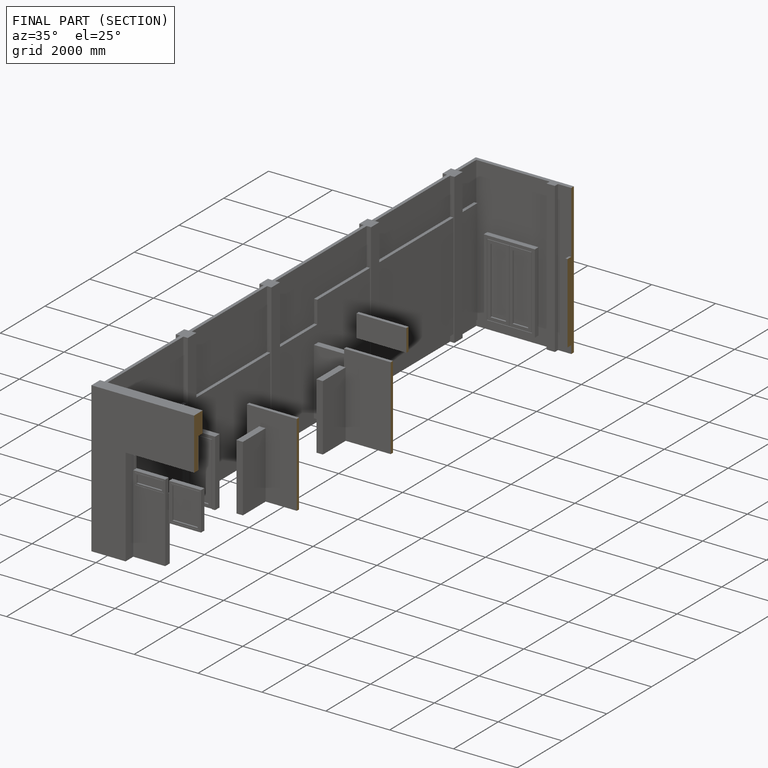
[diagram: finished part — half-section view (interior)]
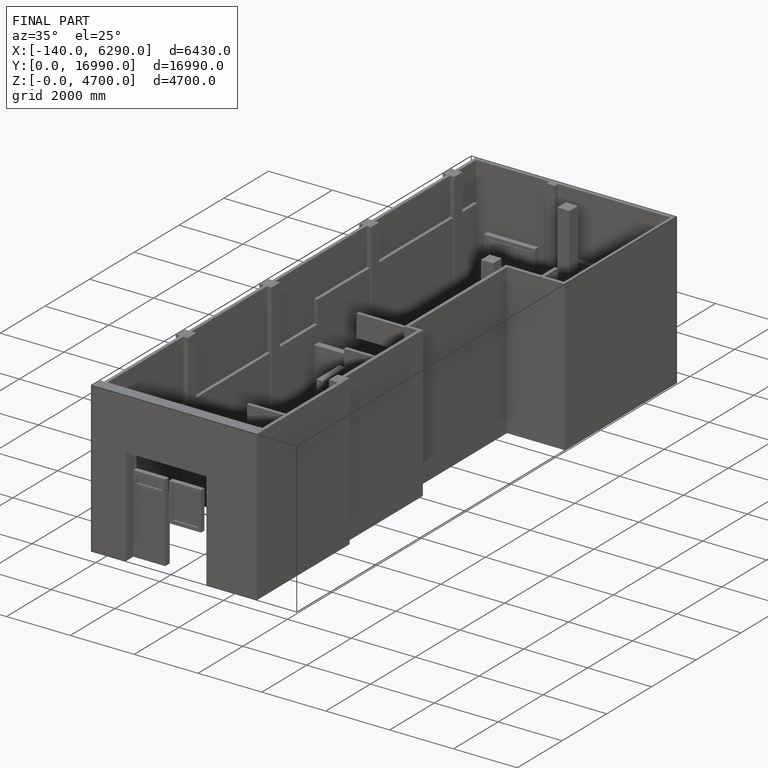
[diagram: finished part — iso view with bounding-box wireframe]
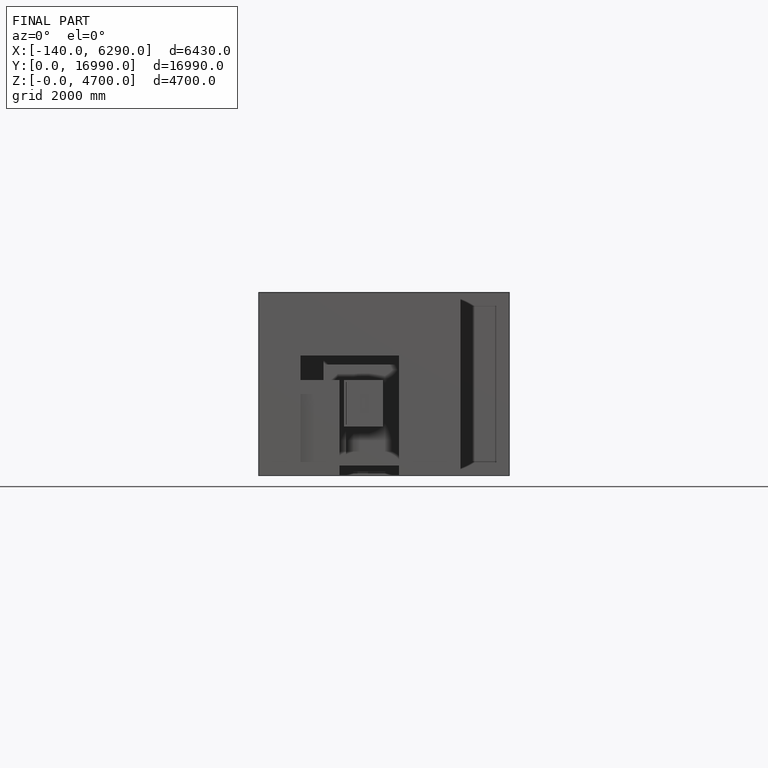
[diagram: finished part — front view with bounding-box wireframe]
